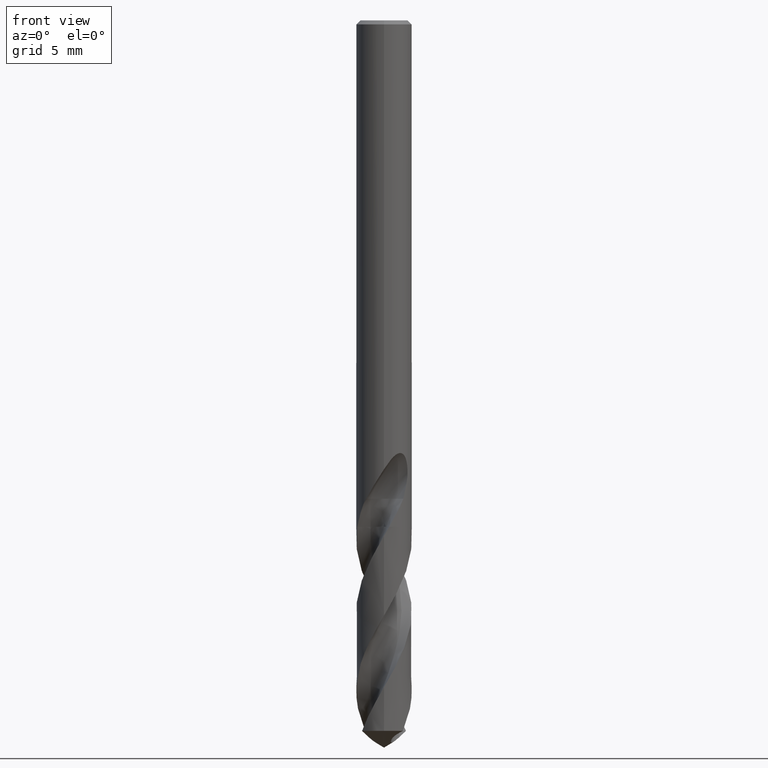
[diagram: clean part render]
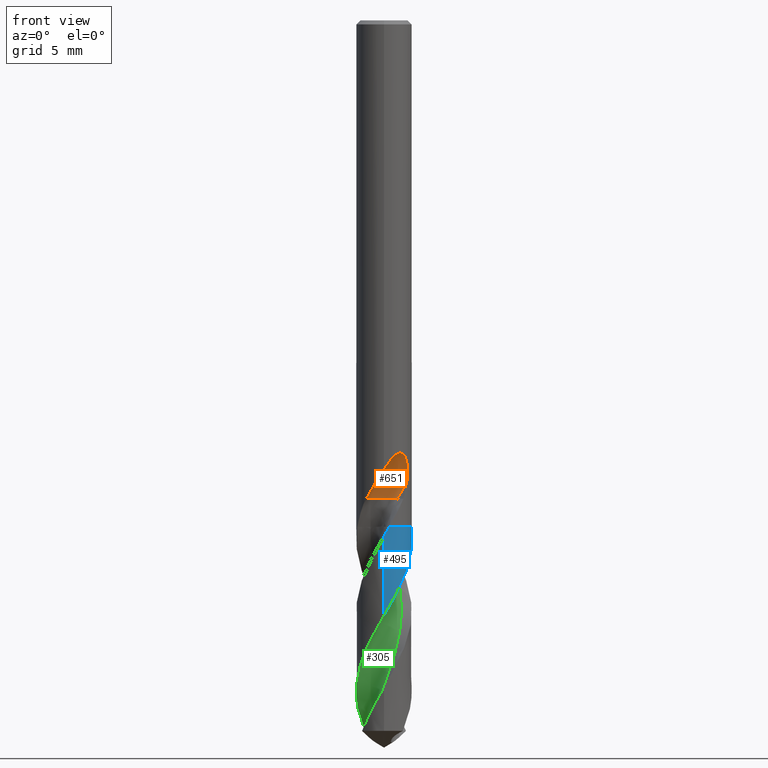
[diagram: same view with three faces highlighted in distinct colors, each labeled with its STEP entity id]
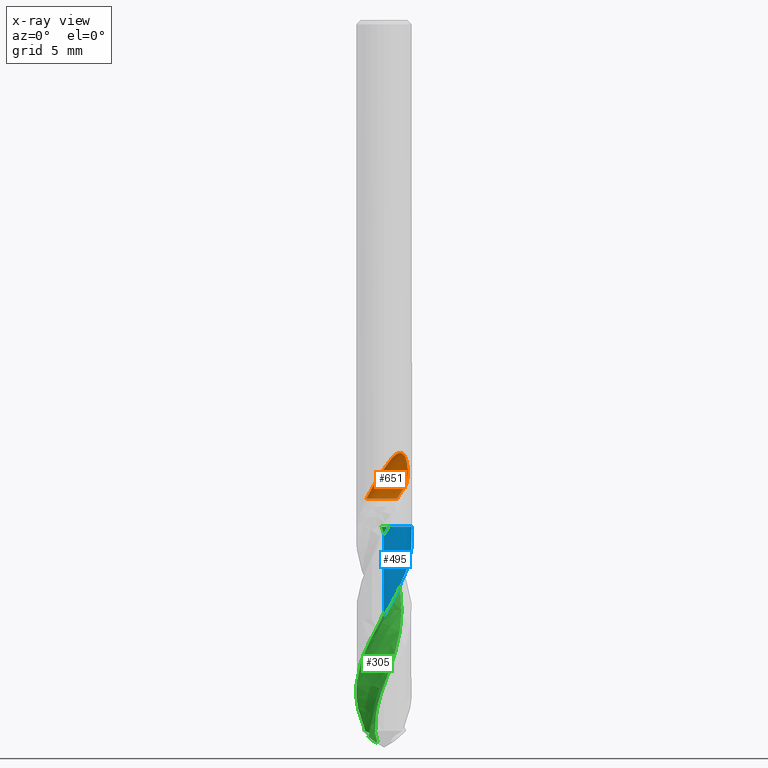
[diagram: x-ray of the same camera — body ghosted, the three highlighted faces saturated]
A machine part, front view with three faces highlighted in distinct colors.
The next image is the same camera in x-ray (body ghosted, the three faces saturated) — at least one of them is partly hidden behind the body in this view.
Their STEP definitions:

[orange] entity #651 — the highlighted face is a SurfaceOfRevolution surface.
#311=VERTEX_POINT('',#810);
#347=EDGE_CURVE('',#617,#671,#851,.T.);
#361=EDGE_CURVE('',#671,#583,#866,.T.);
#411=EDGE_CURVE('',#623,#583,#921,.T.);
#499=EDGE_CURVE('',#311,#623,#1015,.T.);
#555=EDGE_CURVE('',#311,#617,#1076,.T.);
#583=VERTEX_POINT('',#1104);
#617=VERTEX_POINT('',#1140);
#623=VERTEX_POINT('',#1146);
#651=ADVANCED_FACE('',(#1178),#1179,.F.);
#671=VERTEX_POINT('',#1200);
#810=CARTESIAN_POINT('',(-1.33815477037532,-1.61843807744435,-36.1802));
#851=CIRCLE('',#3242,1.4);
#866=CIRCLE('',#3371,9.12504579027448);
#921=B_SPLINE_CURVE_WITH_KNOTS('',3,(#3680,#3681,#3682,#3683,#3684,#3685,#3686,#3687,#3688,#3689,#3690,#3691,#3692,#3693,#3694,#3695,#3696,#3697,#3698,#3699,#3700,#3701,#3702,#3703,#3704,#3705,#3706,#3707),.UNSPECIFIED.,.F.,.F.,(4,2,2,2,2,2,2,2,2,2,2,2,2,4),(0.0,1.02888532896578,1.59067981980449,2.09952440587855,2.69067965646268,3.40079201297187,4.01625864061398,4.29516669491358,4.49901449328071,4.69191413392008,4.93661883013172,5.29463172899718,5.80358915694652,6.38235072285999),.UNSPECIFIED.);
#1015=B_SPLINE_CURVE_WITH_KNOTS('',3,(#4149,#4150,#4151,#4152,#4153,#4154,#4155,#4156,#4157,#4158,#4159,#4160,#4161,#4162,#4163,#4164,#4165,#4166,#4167,#4168,#4169,#4170,#4171,#4172,#4173,#4174,#4175,#4176),.UNSPECIFIED.,.F.,.F.,(4,2,2,2,2,2,2,2,2,2,2,2,2,4),(0.0,1.02888532896578,1.59067981980449,2.09952440587855,2.69067965646268,3.40079201297187,4.01625864061398,4.29516669491358,4.49901449328071,4.69191413392008,4.93661883013172,5.29463172899718,5.80358915694652,6.38235072285999),.UNSPECIFIED.);
#1076=CIRCLE('',#4726,1.4);
#1104=CARTESIAN_POINT('',(1.70864854291025,-1.22086860751298,-35.0302815210883));
#1140=CARTESIAN_POINT('',(0.220957533885471,-0.647536526996968,-36.1802));
#1146=CARTESIAN_POINT('',(6.23962901204027E-013,-2.1,-33.9479410024607));
#1178=FACE_OUTER_BOUND('',#5825,.T.);
#1179=SURFACE_OF_REVOLUTION('',#5826,#5827);
#1200=CARTESIAN_POINT('',(0.989949493590455,-1.04005050640954,-36.1802));
#3242=AXIS2_PLACEMENT_3D('',#6974,#6975,#6976);
#3371=AXIS2_PLACEMENT_3D('',#6988,#6989,#6990);
#3680=CARTESIAN_POINT('',(-1.33815477037532,-1.61843807744435,-36.1802));
#3681=CARTESIAN_POINT('',(-1.19963090189851,-1.73297219400802,-35.8881112223602));
#3682=CARTESIAN_POINT('',(-1.04035972081438,-1.834785085847,-35.6157904295779));
#3683=CARTESIAN_POINT('',(-0.762638208962339,-1.95957807725862,-35.1608597650517));
#3684=CARTESIAN_POINT('',(-0.662701086433434,-1.99547625780557,-35.0008000391549));
#3685=CARTESIAN_POINT('',(-0.469235431953876,-2.04912734544822,-34.6909657977839));
#3686=CARTESIAN_POINT('',(-0.376570734134232,-2.06808215024568,-34.5426354971455));
#3687=CARTESIAN_POINT('',(-0.175990679085837,-2.09543863683843,-34.2229442145823));
#3688=CARTESIAN_POINT('',(-0.0663998889054547,-2.10186119944241,-34.0490808548331));
#3689=CARTESIAN_POINT('',(0.176973125026402,-2.09674199259401,-33.677129812363));
#3690=CARTESIAN_POINT('',(0.321268696880061,-2.08090824141791,-33.465485616075));
#3691=CARTESIAN_POINT('',(0.599524068126656,-2.01696391842214,-33.116498906123));
#3692=CARTESIAN_POINT('',(0.7534716760137,-1.96824639555499,-32.9462069951458));
#3693=CARTESIAN_POINT('',(0.98646980318537,-1.8556373455113,-32.7867458653066));
#3694=CARTESIAN_POINT('',(1.06359366909528,-1.81312487038635,-32.7473366637846));
#3695=CARTESIAN_POINT('',(1.19873242122968,-1.72559062949754,-32.7170633184468));
#3696=CARTESIAN_POINT('',(1.25416041542417,-1.68572687573651,-32.7164980346548));
#3697=CARTESIAN_POINT('',(1.3573980505889,-1.60361585924015,-32.7429934880568));
#3698=CARTESIAN_POINT('',(1.40254904203296,-1.5639578749058,-32.767835336699));
#3699=CARTESIAN_POINT('',(1.49443080912874,-1.47705049532201,-32.8455626312415));
#3700=CARTESIAN_POINT('',(1.53693947345426,-1.43201290614732,-32.9029502600879));
#3701=CARTESIAN_POINT('',(1.62401096383942,-1.33367002680633,-33.0600954158963));
#3702=CARTESIAN_POINT('',(1.66562940042639,-1.28011528983812,-33.1766506863448));
#3703=CARTESIAN_POINT('',(1.74389133327145,-1.17257804110451,-33.5027593615221));
#3704=CARTESIAN_POINT('',(1.7721848346708,-1.12677233329937,-33.7350095812939));
#3705=CARTESIAN_POINT('',(1.79027549176488,-1.09783577125529,-34.290276149154));
#3706=CARTESIAN_POINT('',(1.7774570783939,-1.12456864274165,-34.6389185240585));
#3707=CARTESIAN_POINT('',(1.70864854291025,-1.22086860751298,-35.0302815210883));
#4149=CARTESIAN_POINT('',(-1.33815477037532,-1.61843807744435,-36.1802));
#4150=CARTESIAN_POINT('',(-1.19963090189851,-1.73297219400802,-35.8881112223602));
#4151=CARTESIAN_POINT('',(-1.04035972081438,-1.834785085847,-35.6157904295779));
#4152=CARTESIAN_POINT('',(-0.762638208962339,-1.95957807725862,-35.1608597650517));
#4153=CARTESIAN_POINT('',(-0.662701086433434,-1.99547625780557,-35.0008000391549));
#4154=CARTESIAN_POINT('',(-0.469235431953876,-2.04912734544822,-34.6909657977839));
#4155=CARTESIAN_POINT('',(-0.376570734134232,-2.06808215024568,-34.5426354971455));
#4156=CARTESIAN_POINT('',(-0.175990679085837,-2.09543863683843,-34.2229442145823));
#4157=CARTESIAN_POINT('',(-0.0663998889054547,-2.10186119944241,-34.0490808548331));
#4158=CARTESIAN_POINT('',(0.176973125026402,-2.09674199259401,-33.677129812363));
#4159=CARTESIAN_POINT('',(0.321268696880061,-2.08090824141791,-33.465485616075));
#4160=CARTESIAN_POINT('',(0.599524068126656,-2.01696391842214,-33.116498906123));
#4161=CARTESIAN_POINT('',(0.7534716760137,-1.96824639555499,-32.9462069951458));
#4162=CARTESIAN_POINT('',(0.98646980318537,-1.8556373455113,-32.7867458653066));
#4163=CARTESIAN_POINT('',(1.06359366909528,-1.81312487038635,-32.7473366637846));
#4164=CARTESIAN_POINT('',(1.19873242122968,-1.72559062949754,-32.7170633184468));
#4165=CARTESIAN_POINT('',(1.25416041542417,-1.68572687573651,-32.7164980346548));
#4166=CARTESIAN_POINT('',(1.3573980505889,-1.60361585924015,-32.7429934880568));
#4167=CARTESIAN_POINT('',(1.40254904203296,-1.5639578749058,-32.767835336699));
#4168=CARTESIAN_POINT('',(1.49443080912874,-1.47705049532201,-32.8455626312415));
#4169=CARTESIAN_POINT('',(1.53693947345426,-1.43201290614732,-32.9029502600879));
#4170=CARTESIAN_POINT('',(1.62401096383942,-1.33367002680633,-33.0600954158963));
#4171=CARTESIAN_POINT('',(1.66562940042639,-1.28011528983812,-33.1766506863448));
#4172=CARTESIAN_POINT('',(1.74389133327145,-1.17257804110451,-33.5027593615221));
#4173=CARTESIAN_POINT('',(1.7721848346708,-1.12677233329937,-33.7350095812939));
#4174=CARTESIAN_POINT('',(1.79027549176488,-1.09783577125529,-34.290276149154));
#4175=CARTESIAN_POINT('',(1.7774570783939,-1.12456864274165,-34.6389185240585));
#4176=CARTESIAN_POINT('',(1.70864854291025,-1.22086860751298,-35.0302815210883));
#4726=AXIS2_PLACEMENT_3D('',#7194,#7195,#7196);
#5825=EDGE_LOOP('',(#7262,#7263,#7264,#7265,#7266));
#5826=(B_SPLINE_CURVE(3,(#7268,#7269,#7270,#7271,#7272,#7273,#7274,#7275,#7276),.UNSPECIFIED.,.F.,.F.)B_SPLINE_CURVE_WITH_KNOTS((4,1,3,1,4),(-2.85587409918412,-2.55247868108804,-2.24908326299196,-1.94568784489587,-1.64229242679979),.UNSPECIFIED.)RATIONAL_B_SPLINE_CURVE((1.0920487797217,1.0306829265739,0.969317073426101,1.0306829265739,1.0920487797217,1.0306829265739,0.969317073426101,1.0306829265739,1.0920487797217))BOUNDED_CURVE()REPRESENTATION_ITEM('')GEOMETRIC_REPRESENTATION_ITEM()CURVE());
#5827=AXIS1_PLACEMENT('',#7283,#7284);
#6974=CARTESIAN_POINT('',(-1.18321600557454E-005,-2.02998816783994,-36.1802));
#6975=DIRECTION('',(-0.0,0.0,-1.0));
#6976=DIRECTION('',(-0.707098329593144,-0.707115232678936,0.0));
#6988=CARTESIAN_POINT('',(0.711873793143698,-10.15,-36.6251211207148));
#6989=DIRECTION('',(0.847998304005088,-5.3333503820404E-018,-0.52999894000318));
#6990=DIRECTION('',(0.0535598122533608,0.994880693138896,0.0856956996053773));
#7194=CARTESIAN_POINT('',(-1.18321600557454E-005,-2.02998816783994,-36.1802));
#7195=DIRECTION('',(-0.0,0.0,-1.0));
#7196=DIRECTION('',(-0.707098329593144,-0.707115232678936,0.0));
#7262=ORIENTED_EDGE('',*,*,#499,.F.);
#7263=ORIENTED_EDGE('',*,*,#555,.T.);
#7264=ORIENTED_EDGE('',*,*,#347,.T.);
#7265=ORIENTED_EDGE('',*,*,#361,.T.);
#7266=ORIENTED_EDGE('',*,*,#411,.F.);
#7268=CARTESIAN_POINT('',(0.989949493590455,-1.04005050640954,-36.1802));
#7269=CARTESIAN_POINT('',(0.795681827020351,-0.84577819589828,-36.1802));
#7270=CARTESIAN_POINT('',(0.290292936088508,-0.569937688920351,-36.1802));
#7271=CARTESIAN_POINT('',(-0.282175602542642,-0.63146563902982,-36.1802));
#7272=CARTESIAN_POINT('',(-0.535984059782297,-0.736646074185811,-36.1802));
#7273=CARTESIAN_POINT('',(-0.789792517021952,-0.841826509341802,-36.1802));
#7274=CARTESIAN_POINT('',(-1.23797535814772,-1.2032653800898,-36.1802));
#7275=CARTESIAN_POINT('',(-1.40010655193457,-1.75573202376018,-36.1802));
#7276=CARTESIAN_POINT('',(-1.40001174881076,-2.03047125997944,-36.1802));
#7283=CARTESIAN_POINT('',(0.711873793143697,-10.15,-36.6251211207148));
#7284=DIRECTION('',(-0.847998304005088,0.0,0.52999894000318));

[blue] entity #495 — the highlighted conical surface has half-angle 0 deg.
#313=VERTEX_POINT('',#812);
#317=VERTEX_POINT('',#816);
#329=EDGE_CURVE('',#641,#317,#830,.T.);
#401=EDGE_CURVE('',#719,#313,#911,.T.);
#439=VERTEX_POINT('',#950);
#491=VERTEX_POINT('',#1006);
#495=ADVANCED_FACE('',(#1010),#1011,.T.);
#599=EDGE_CURVE('',#313,#439,#1120,.T.);
#641=VERTEX_POINT('',#1166);
#653=EDGE_CURVE('',#317,#719,#1181,.T.);
#689=EDGE_CURVE('',#491,#439,#1219,.T.);
#719=VERTEX_POINT('',#1252);
#727=EDGE_CURVE('',#491,#641,#1260,.T.);
#812=CARTESIAN_POINT('',(0.390145780357921,-2.06333865763444,-38.305));
#816=CARTESIAN_POINT('',(2.02242974170197,0.565117642512876,-38.3));
#830=B_SPLINE_CURVE_WITH_KNOTS('',3,(#2741,#2742,#2743,#2744),.UNSPECIFIED.,.F.,.F.,(4,4),(0.0,0.0091078684861657),.UNSPECIFIED.);
#911=B_SPLINE_CURVE_WITH_KNOTS('',3,(#3646,#3647,#3648,#3649),.UNSPECIFIED.,.F.,.F.,(4,4),(0.0,0.00799907949211463),.UNSPECIFIED.);
#950=CARTESIAN_POINT('',(-1.36379404528717E-014,-2.09990444357236,-38.9860072637857));
#1006=CARTESIAN_POINT('',(1.30074145295058E-014,-2.0999434989582,-45.0154529889263));
#1010=FACE_OUTER_BOUND('',#4143,.T.);
#1011=CONICAL_SURFACE('',#4144,2.09995,6.47744214246915E-006);
#1120=B_SPLINE_CURVE_WITH_KNOTS('',3,(#5078,#5079,#5080,#5081,#5082,#5083,#5084,#5085,#5086,#5087,#5088,#5089,#5090,#5091,#5092,#5093,#5094,#5095,#5096,#5097,#5098,#5099,#5100,#5101,#5102,#5103,#5104,#5105,#5106,#5107,#5108,#5109,#5110,#5111,#5112,#5113,#5114,#5115,#5116,#5117,#5118,#5119,#5120,#5121,#5122,#5123,#5124,#5125,#5126,#5127,#5128,#5129,#5130,#5131),.UNSPECIFIED.,.F.,.F.,(4,2,2,2,2,2,2,2,2,2,2,2,2,2,2,2,2,2,2,2,2,2,2,2,2,2,4),(0.0,0.503909517574483,1.13278829859474,1.95331177845155,2.7691083189169,3.17418708438028,3.98540678216723,4.80004578718783,5.61705186428529,5.81836232337109,6.62775542031261,7.44499740375023,8.26058421103626,8.66412830215472,9.47658145994464,10.2886939642005,11.1063820422001,11.2067594291098,12.0003007831243,12.7277738410954,13.3615420971519,14.4769491370103,14.8951127221257,15.626291945844,16.1753774852233,17.0001347180208,17.8248516723183),.UNSPECIFIED.);
#1166=CARTESIAN_POINT('',(2.02320340970795,0.56234163577506,-38.305));
#1181=CIRCLE('',#5830,2.0999);
#1219=LINE('',#6485,#6486);
#1252=CARTESIAN_POINT('',(0.392983451432711,-2.06280004287862,-38.3));
#1260=B_SPLINE_CURVE_WITH_KNOTS('',3,(#6572,#6573,#6574,#6575,#6576,#6577,#6578,#6579,#6580,#6581,#6582,#6583,#6584,#6585,#6586,#6587,#6588,#6589,#6590,#6591,#6592,#6593,#6594,#6595,#6596,#6597,#6598,#6599,#6600,#6601,#6602,#6603,#6604,#6605,#6606,#6607,#6608,#6609,#6610,#6611,#6612,#6613,#6614,#6615,#6616,#6617,#6618,#6619,#6620,#6621,#6622,#6623,#6624,#6625,#6626,#6627,#6628,#6629,#6630,#6631,#6632,#6633,#6634,#6635,#6636,#6637,#6638,#6639,#6640,#6641,#6642,#6643,#6644,#6645),.UNSPECIFIED.,.F.,.F.,(4,2,2,2,2,2,2,2,2,2,2,2,2,2,2,2,2,2,2,2,2,2,2,2,2,2,2,2,2,2,2,2,2,2,2,2,4),(0.0,1.23625972292761,1.28090321037564,1.97511493637118,2.3840890977892,2.79224867802999,3.47174308860152,3.8120364301856,4.15063406902024,4.83041698696505,5.170846193326,5.50962474233837,6.18969503071297,6.53030297834813,6.86930156829632,7.54976232675562,7.89055696891206,8.22975320464369,8.91059984628346,9.25161203428264,9.59105219666649,10.272348982676,10.6136108251922,10.9533446528941,11.6351623398099,11.9766777413867,12.3166696129387,12.9990374819741,13.3054847538729,13.8777061850719,14.884091522244,14.9310911833174,15.6738396568611,16.2313276549158,16.3356349820193,17.1189991023162,17.9004014585408),.UNSPECIFIED.);
#2741=CARTESIAN_POINT('',(2.02364894547729,0.560736275034458,-38.3078911612519));
#2742=CARTESIAN_POINT('',(2.02324418297431,0.5621969642544,-38.3052606510093));
#2743=CARTESIAN_POINT('',(2.02283778197663,0.563657420873323,-38.3026302634322));
#2744=CARTESIAN_POINT('',(2.02242974170197,0.565117642512899,-38.3));
#3646=CARTESIAN_POINT('',(0.392983451432721,-2.06280004287862,-38.3));
#3647=CARTESIAN_POINT('',(0.391673276458587,-2.06304965916571,-38.3023088109479));
#3648=CARTESIAN_POINT('',(0.390362881889022,-2.06329802375483,-38.3046176308124));
#3649=CARTESIAN_POINT('',(0.389052269520858,-2.06354513641158,-38.3069264628355));
#4143=EDGE_LOOP('',(#7124,#7125,#7126,#7127,#7128,#7129));
#4144=AXIS2_PLACEMENT_3D('',#7130,#7131,#7132);
#5078=CARTESIAN_POINT('',(0.390569997594199,-2.06325839454656,-38.3042526002693));
#5079=CARTESIAN_POINT('',(0.308017328981765,-2.07888638085567,-38.449699119055));
#5080=CARTESIAN_POINT('',(0.224716797414785,-2.08952430822792,-38.5951383021161));
#5081=CARTESIAN_POINT('',(0.0367738684099087,-2.10218470287974,-38.9223348117959));
#5082=CARTESIAN_POINT('',(-0.0679943574266461,-2.10141253859432,-39.1038875286953));
#5083=CARTESIAN_POINT('',(-0.308420420629415,-2.08161981260738,-39.5224390327178));
#5084=CARTESIAN_POINT('',(-0.443125251478291,-2.05716336356693,-39.7583208125454));
#5085=CARTESIAN_POINT('',(-0.705158400106131,-1.98263238746144,-40.2307940643223));
#5086=CARTESIAN_POINT('',(-0.831902417006057,-1.93288220866722,-40.4658503427265));
#5087=CARTESIAN_POINT('',(-1.0130741240081,-1.84061942150497,-40.8183438752922));
#5088=CARTESIAN_POINT('',(-1.07165398331752,-1.80713978354698,-40.9351926608393));
#5089=CARTESIAN_POINT('',(-1.24236193478339,-1.6983594475139,-41.2864610908847));
#5090=CARTESIAN_POINT('',(-1.34899979536947,-1.61496761203563,-41.5203685107646));
#5091=CARTESIAN_POINT('',(-1.54524320417646,-1.42839463975181,-41.9898332983309));
#5092=CARTESIAN_POINT('',(-1.63425164651977,-1.32562957028781,-42.2243981313254));
#5093=CARTESIAN_POINT('',(-1.79139311922352,-1.10412984435196,-42.6956394447378));
#5094=CARTESIAN_POINT('',(-1.8591471768903,-0.985797808151183,-42.930975937371));
#5095=CARTESIAN_POINT('',(-1.92875098901316,-0.831118518378167,-43.2250018358748));
#5096=CARTESIAN_POINT('',(-1.94177287670343,-0.800223200289188,-43.2831057114801));
#5097=CARTESIAN_POINT('',(-2.00340353928966,-0.643630058372398,-43.5750011538261));
#5098=CARTESIAN_POINT('',(-2.04058122880582,-0.513741692568061,-43.8084848827808));
#5099=CARTESIAN_POINT('',(-2.08976059917131,-0.247325392888569,-44.2782629886076));
#5100=CARTESIAN_POINT('',(-2.10139018086837,-0.11142495336553,-44.5135340097885));
#5101=CARTESIAN_POINT('',(-2.09820825033845,0.160363000775788,-44.9851936857589));
#5102=CARTESIAN_POINT('',(-2.08345659791678,0.295700461871953,-45.2202185243422));
#5103=CARTESIAN_POINT('',(-2.04199424879412,0.494527167725195,-45.5722820178483));
#5104=CARTESIAN_POINT('',(-2.02512257635464,0.55961889771996,-45.6887212518613));
#5105=CARTESIAN_POINT('',(-1.9649898299328,0.752928517137824,-46.0399799950333));
#5106=CARTESIAN_POINT('',(-1.91241331019603,0.877947662392781,-46.2742468743428));
#5107=CARTESIAN_POINT('',(-1.78391237756426,1.11614103097192,-46.7434441908355));
#5108=CARTESIAN_POINT('',(-1.70833866832319,1.22868832413268,-46.9774472691566));
#5109=CARTESIAN_POINT('',(-1.53608485396776,1.43833375736206,-47.448269252438));
#5110=CARTESIAN_POINT('',(-1.43960923739679,1.53490051405826,-47.6838124251385));
#5111=CARTESIAN_POINT('',(-1.32150722229206,1.63209706794024,-47.9489523292886));
#5112=CARTESIAN_POINT('',(-1.30847043446765,1.64256749154625,-47.9779373287673));
#5113=CARTESIAN_POINT('',(-1.1912730174795,1.73441352718902,-48.2361479499733));
#5114=CARTESIAN_POINT('',(-1.0797589536874,1.80594882725479,-48.4651641484731));
#5115=CARTESIAN_POINT('',(-0.854553728601669,1.92205407898775,-48.9045503267968));
#5116=CARTESIAN_POINT('',(-0.742261005782644,1.96814586874391,-49.1140479251563));
#5117=CARTESIAN_POINT('',(-0.525909641333397,2.03579030658126,-49.507339454028));
#5118=CARTESIAN_POINT('',(-0.422928295383579,2.05965249761215,-49.6902925328945));
#5119=CARTESIAN_POINT('',(-0.134908088137453,2.10386084279632,-50.1956201899306));
#5120=CARTESIAN_POINT('',(0.0516646706071843,2.10754555445554,-50.5163525505894));
#5121=CARTESIAN_POINT('',(0.30543875794485,2.07881726228552,-50.9594372772372));
#5122=CARTESIAN_POINT('',(0.37422279021143,2.06754445777166,-51.0801652060103));
#5123=CARTESIAN_POINT('',(0.56144113566867,2.02720611613326,-51.4121744287994));
#5124=CARTESIAN_POINT('',(0.678040337001556,1.9912372771231,-51.6229029169465));
#5125=CARTESIAN_POINT('',(0.875520498819515,1.91096184146802,-51.9928350238206));
#5126=CARTESIAN_POINT('',(0.957902075011818,1.87102879249249,-52.1513464301706));
#5127=CARTESIAN_POINT('',(1.15690667055529,1.75795759471379,-52.5482463852867));
#5128=CARTESIAN_POINT('',(1.26941257733474,1.67852228734416,-52.7858535933192));
#5129=CARTESIAN_POINT('',(1.47725957618053,1.49885310389707,-53.2624188558046));
#5130=CARTESIAN_POINT('',(1.57214712188489,1.39901384181612,-53.4999757726785));
#5131=CARTESIAN_POINT('',(1.65662077604711,1.29058421049116,-53.7381927000421));
#5830=AXIS2_PLACEMENT_3D('',#7285,#7286,#7287);
#6485=CARTESIAN_POINT('',(2.57655683829627E-016,-2.09995,-46.0190963500211));
#6486=VECTOR('',#7311,1.0);
#6572=CARTESIAN_POINT('',(-1.42649737981016,1.54113763999026,-53.7381927000421));
#6573=CARTESIAN_POINT('',(-1.57695963547069,1.40186463132384,-53.3807301378004));
#6574=CARTESIAN_POINT('',(-1.70625555040632,1.24129005580703,-53.0293134092204));
#6575=CARTESIAN_POINT('',(-1.81403925200662,1.05796369603176,-52.6594367115552));
#6576=CARTESIAN_POINT('',(-1.81775758415094,1.05156197003925,-52.6465537494186));
#6577=CARTESIAN_POINT('',(-1.87879164116603,0.945189935453131,-52.4332394713616));
#6578=CARTESIAN_POINT('',(-1.92791238872987,0.840527311451122,-52.2338000763874));
#6579=CARTESIAN_POINT('',(-1.99198013429963,0.66828655964907,-51.9157455652368));
#6580=CARTESIAN_POINT('',(-2.01258782056809,0.603374998298269,-51.7980066051716));
#6581=CARTESIAN_POINT('',(-2.04737025013092,0.472039583868538,-51.5622762686134));
#6582=CARTESIAN_POINT('',(-2.06153181722622,0.405726798596233,-51.444209904945));
#6583=CARTESIAN_POINT('',(-2.09066250873509,0.227553600222249,-51.1305784864097));
#6584=CARTESIAN_POINT('',(-2.09988608488912,0.114830844412168,-50.9356141501241));
#6585=CARTESIAN_POINT('',(-2.10002678840179,-0.0548590825056493,-50.6418465304335));
#6586=CARTESIAN_POINT('',(-2.0977834526929,-0.111399099600811,-50.5439079645802));
#6587=CARTESIAN_POINT('',(-2.0887800573786,-0.223754302804554,-50.3481971439892));
#6588=CARTESIAN_POINT('',(-2.08204988465575,-0.279516762296138,-50.2503728293071));
#6589=CARTESIAN_POINT('',(-2.05509471999118,-0.446323204897777,-49.9568442280061));
#6590=CARTESIAN_POINT('',(-2.02814153083882,-0.55616234144262,-49.761871057212));
#6591=CARTESIAN_POINT('',(-1.97453338334247,-0.717152402691944,-49.4681023610114));
#6592=CARTESIAN_POINT('',(-1.95449948014606,-0.770067979609093,-49.3701643658867));
#6593=CARTESIAN_POINT('',(-1.91037407804928,-0.873789214607527,-49.1744441489832));
#6594=CARTESIAN_POINT('',(-1.88632768804101,-0.924552415493039,-49.0766078507017));
#6595=CARTESIAN_POINT('',(-1.80793616589045,-1.07422082498457,-48.7830796780434));
#6596=CARTESIAN_POINT('',(-1.74758831670783,-1.16986200662086,-48.5881162685079));
#6597=CARTESIAN_POINT('',(-1.64575179937315,-1.30558769415783,-48.2943594190237));
#6598=CARTESIAN_POINT('',(-1.60998647372268,-1.34943891313401,-48.1964196726624));
#6599=CARTESIAN_POINT('',(-1.5352677527402,-1.43386168437587,-48.0006855557121));
#6600=CARTESIAN_POINT('',(-1.49637147739585,-1.47440516464981,-47.9028367535178));
#6601=CARTESIAN_POINT('',(-1.37460150306921,-1.59154756824184,-47.6092976532267));
#6602=CARTESIAN_POINT('',(-1.28706411952831,-1.66315261858641,-47.4143303838959));
#6603=CARTESIAN_POINT('',(-1.14747920193266,-1.75963568325722,-47.1205693471303));
#6604=CARTESIAN_POINT('',(-1.09966634789741,-1.78990047717287,-47.0226295947384));
#6605=CARTESIAN_POINT('',(-1.00205445191026,-1.84631023083157,-46.8268918845728));
#6606=CARTESIAN_POINT('',(-0.952320200401932,-1.87244537355205,-46.7290378486443));
#6607=CARTESIAN_POINT('',(-0.799737722758124,-1.94497735502705,-46.4355074348213));
#6608=CARTESIAN_POINT('',(-0.694039659141798,-1.98516645669107,-46.2405493375742));
#6609=CARTESIAN_POINT('',(-0.531090397208035,-2.0324707402636,-45.9467992683771));
#6610=CARTESIAN_POINT('',(-0.476152581357892,-2.04603440922365,-45.8488592666883));
#6611=CARTESIAN_POINT('',(-0.365691401625201,-2.06862591830022,-45.6531140652609));
#6612=CARTESIAN_POINT('',(-0.310234439931019,-2.07766407178698,-45.5552520053569));
#6613=CARTESIAN_POINT('',(-0.142543848924141,-2.09813363643255,-45.2617241016337));
#6614=CARTESIAN_POINT('',(-0.0295639803973534,-2.10277684309451,-45.0667692676582));
#6615=CARTESIAN_POINT('',(0.139979429174032,-2.09603637315916,-44.7730259432923));
#6616=CARTESIAN_POINT('',(0.196389143239131,-2.09150139697624,-44.6750840143884));
#6617=CARTESIAN_POINT('',(0.308337346441052,-2.07794153230446,-44.4793242643663));
#6618=CARTESIAN_POINT('',(0.363814668173169,-2.06894687649886,-44.3814487632646));
#6619=CARTESIAN_POINT('',(0.529365127776661,-2.03524565665478,-44.0879104788328));
#6620=CARTESIAN_POINT('',(0.638001273951082,-2.00386314295443,-43.892957283783));
#6621=CARTESIAN_POINT('',(0.796682304129024,-1.94376647189027,-43.5992149602957));
#6622=CARTESIAN_POINT('',(0.848750680606152,-1.92159752429602,-43.5012747695548));
#6623=CARTESIAN_POINT('',(0.95063900341459,-1.8732769404577,-43.3055158646224));
#6624=CARTESIAN_POINT('',(1.00040865782058,-1.84717396744679,-43.2076387821707));
#6625=CARTESIAN_POINT('',(1.1467372927549,-1.76278481504455,-42.9141083507414));
#6626=CARTESIAN_POINT('',(1.23982916951966,-1.6986177372859,-42.7191514709198));
#6627=CARTESIAN_POINT('',(1.36675679244264,-1.59506914965465,-42.4355529934564));
#6628=CARTESIAN_POINT('',(1.4048834541671,-1.56158927664003,-42.3477257732288));
#6629=CARTESIAN_POINT('',(1.51053552159147,-1.46182119641447,-42.0955757400566));
#6630=CARTESIAN_POINT('',(1.57486522320521,-1.39228274341314,-41.9307783594397));
#6631=CARTESIAN_POINT('',(1.73894949831119,-1.18889682789988,-41.4776906637322));
#6632=CARTESIAN_POINT('',(1.82759557979525,-1.04744037054761,-41.1917716660326));
#6633=CARTESIAN_POINT('',(1.90186839551696,-0.89028489895096,-40.88918144816));
#6634=CARTESIAN_POINT('',(1.90514046053453,-0.883261102672644,-40.8756862192091));
#6635=CARTESIAN_POINT('',(1.95957074018127,-0.764708205626058,-40.6486107350995));
#6636=CARTESIAN_POINT('',(2.00098897614421,-0.648732277655782,-40.4361828595708));
#6637=CARTESIAN_POINT('',(2.05536191675618,-0.440071439084963,-40.0629066325811));
#6638=CARTESIAN_POINT('',(2.0727055673299,-0.349300466914093,-39.903281590152));
#6639=CARTESIAN_POINT('',(2.08613851731232,-0.240711331524891,-39.7130980923928));
#6640=CARTESIAN_POINT('',(2.08804369774982,-0.223583452944534,-39.6831201714541));
#6641=CARTESIAN_POINT('',(2.10249099718927,-0.0772865685181711,-39.4277155897356));
#6642=CARTESIAN_POINT('',(2.10325881656201,0.0528018798612655,-39.2040537662504));
#6643=CARTESIAN_POINT('',(2.08073285853896,0.311351533702633,-38.7542039027651));
#6644=CARTESIAN_POINT('',(2.05766511398071,0.438374291294746,-38.5282681163619));
#6645=CARTESIAN_POINT('',(2.02318675090137,0.562401559440356,-38.3048920733307));
#7124=ORIENTED_EDGE('',*,*,#689,.F.);
#7125=ORIENTED_EDGE('',*,*,#727,.T.);
#7126=ORIENTED_EDGE('',*,*,#329,.T.);
#7127=ORIENTED_EDGE('',*,*,#653,.T.);
#7128=ORIENTED_EDGE('',*,*,#401,.T.);
#7129=ORIENTED_EDGE('',*,*,#599,.T.);
#7130=CARTESIAN_POINT('',(0.0,0.0,-46.0190963500211));
#7131=DIRECTION('',(0.0,-0.0,-1.0));
#7132=DIRECTION('',(0.0,1.0,0.0));
#7285=CARTESIAN_POINT('',(0.0,0.0,-38.3));
#7286=DIRECTION('',(0.0,0.0,-1.0));
#7287=DIRECTION('',(0.0,1.0,0.0));
#7311=DIRECTION('',(-7.93231680412909E-022,6.47744214242386E-006,0.999999999979021));

[green] entity #305 — the highlighted face is a freeform B-spline surface patch.
#305=ADVANCED_FACE('',(#802),#803,.F.);
#337=EDGE_CURVE('',#641,#551,#839,.T.);
#351=EDGE_CURVE('',#373,#725,#855,.T.);
#373=VERTEX_POINT('',#880);
#399=EDGE_CURVE('',#551,#373,#909,.T.);
#491=VERTEX_POINT('',#1006);
#551=VERTEX_POINT('',#1072);
#565=EDGE_CURVE('',#725,#491,#1086,.T.);
#641=VERTEX_POINT('',#1166);
#725=VERTEX_POINT('',#1258);
#727=EDGE_CURVE('',#491,#641,#1260,.T.);
#802=FACE_OUTER_BOUND('',#2282,.T.);
#803=B_SPLINE_SURFACE_WITH_KNOTS('',3,3,((#2283,#2284,#2285,#2286,#2287,#2288,#2289,#2290,#2291,#2292,#2293,#2294,#2295,#2296,#2297,#2298,#2299,#2300,#2301,#2302,#2303,#2304,#2305,#2306,#2307,#2308,#2309,#2310,#2311,#2312,#2313,#2314,#2315,#2316,#2317,#2318,#2319,#2320,#2321),(#2322,#2323,#2324,#2325,#2326,#2327,#2328,#2329,#2330,#2331,#2332,#2333,#2334,#2335,#2336,#2337,#2338,#2339,#2340,#2341,#2342,#2343,#2344,#2345,#2346,#2347,#2348,#2349,#2350,#2351,#2352,#2353,#2354,#2355,#2356,#2357,#2358,#2359,#2360),(#2361,#2362,#2363,#2364,#2365,#2366,#2367,#2368,#2369,#2370,#2371,#2372,#2373,#2374,#2375,#2376,#2377,#2378,#2379,#2380,#2381,#2382,#2383,#2384,#2385,#2386,#2387,#2388,#2389,#2390,#2391,#2392,#2393,#2394,#2395,#2396,#2397,#2398,#2399),(#2400,#2401,#2402,#2403,#2404,#2405,#2406,#2407,#2408,#2409,#2410,#2411,#2412,#2413,#2414,#2415,#2416,#2417,#2418,#2419,#2420,#2421,#2422,#2423,#2424,#2425,#2426,#2427,#2428,#2429,#2430,#2431,#2432,#2433,#2434,#2435,#2436,#2437,#2438),(#2439,#2440,#2441,#2442,#2443,#2444,#2445,#2446,#2447,#2448,#2449,#2450,#2451,#2452,#2453,#2454,#2455,#2456,#2457,#2458,#2459,#2460,#2461,#2462,#2463,#2464,#2465,#2466,#2467,#2468,#2469,#2470,#2471,#2472,#2473,#2474,#2475,#2476,#2477),(#2478,#2479,#2480,#2481,#2482,#2483,#2484,#2485,#2486,#2487,#2488,#2489,#2490,#2491,#2492,#2493,#2494,#2495,#2496,#2497,#2498,#2499,#2500,#2501,#2502,#2503,#2504,#2505,#2506,#2507,#2508,#2509,#2510,#2511,#2512,#2513,#2514,#2515,#2516),(#2517,#2518,#2519,#2520,#2521,#2522,#2523,#2524,#2525,#2526,#2527,#2528,#2529,#2530,#2531,#2532,#2533,#2534,#2535,#2536,#2537,#2538,#2539,#2540,#2541,#2542,#2543,#2544,#2545,#2546,#2547,#2548,#2549,#2550,#2551,#2552,#2553,#2554,#2555),(#2556,#2557,#2558,#2559,#2560,#2561,#2562,#2563,#2564,#2565,#2566,#2567,#2568,#2569,#2570,#2571,#2572,#2573,#2574,#2575,#2576,#2577,#2578,#2579,#2580,#2581,#2582,#2583,#2584,#2585,#2586,#2587,#2588,#2589,#2590,#2591,#2592,#2593,#2594),(#2595,#2596,#2597,#2598,#2599,#2600,#2601,#2602,#2603,#2604,#2605,#2606,#2607,#2608,#2609,#2610,#2611,#2612,#2613,#2614,#2615,#2616,#2617,#2618,#2619,#2620,#2621,#2622,#2623,#2624,#2625,#2626,#2627,#2628,#2629,#2630,#2631,#2632,#2633),(#2634,#2635,#2636,#2637,#2638,#2639,#2640,#2641,#2642,#2643,#2644,#2645,#2646,#2647,#2648,#2649,#2650,#2651,#2652,#2653,#2654,#2655,#2656,#2657,#2658,#2659,#2660,#2661,#2662,#2663,#2664,#2665,#2666,#2667,#2668,#2669,#2670,#2671,#2672),(#2673,#2674,#2675,#2676,#2677,#2678,#2679,#2680,#2681,#2682,#2683,#2684,#2685,#2686,#2687,#2688,#2689,#2690,#2691,#2692,#2693,#2694,#2695,#2696,#2697,#2698,#2699,#2700,#2701,#2702,#2703,#2704,#2705,#2706,#2707,#2708,#2709,#2710,#2711)),.UNSPECIFIED.,.F.,.F.,.F.,(4,1,1,1,1,1,1,1,4),(4,1,2,2,2,2,2,2,2,2,2,2,2,2,2,2,2,2,2,4),(-3.06643213292735E-017,0.392702069770371,0.785404139540742,1.17810620931111,1.57080827908148,1.96351034885185,2.35621241862223,2.7489144883926,3.14161655816297),(0.0,0.377783773898047,0.755567547796093,1.51113509559219,2.26670264338828,3.02227019118437,4.53340528677656,6.04454038236875,7.55567547796093,9.06681057355312,10.5779456691453,12.0890807647375,13.6002158603297,15.1113509559219,16.6224860515141,18.1336211471062,19.6447562426984,21.1558913382906,22.6670264338828,24.178161529475),.UNSPECIFIED.);
#839=B_SPLINE_CURVE_WITH_KNOTS('',3,(#2781,#2782,#2783,#2784,#2785,#2786,#2787,#2788,#2789,#2790,#2791,#2792,#2793,#2794,#2795,#2796,#2797,#2798,#2799,#2800),.UNSPECIFIED.,.F.,.F.,(4,2,2,2,2,2,2,2,2,4),(-4.41013167586698,-4.11834428530878,-3.82649306109936,-3.2792943898088,-2.73216853712332,-2.18537760738312,-1.63898850640887,-1.09283122814982,-0.546593721055223,-0.0),.UNSPECIFIED.);
#855=B_SPLINE_CURVE_WITH_KNOTS('',3,(#3247,#3248,#3249,#3250,#3251,#3252,#3253,#3254,#3255,#3256,#3257,#3258,#3259,#3260,#3261,#3262,#3263,#3264,#3265,#3266,#3267,#3268),.UNSPECIFIED.,.F.,.F.,(4,2,2,2,2,2,2,2,2,2,4),(0.0,0.72128425080229,1.41332437305516,1.96690449564687,2.45915162259159,3.08818770099374,3.83115656962382,4.71423728901641,5.72105162538196,6.49399210159101,7.26291400823827),.UNSPECIFIED.);
#880=CARTESIAN_POINT('',(-1.16681710543968,-0.626358709644195,-54.2042764481402));
#909=B_SPLINE_CURVE_WITH_KNOTS('',3,(#3605,#3606,#3607,#3608,#3609,#3610,#3611,#3612,#3613,#3614,#3615,#3616,#3617,#3618,#3619,#3620,#3621,#3622,#3623,#3624,#3625,#3626,#3627,#3628,#3629,#3630,#3631,#3632,#3633,#3634,#3635,#3636,#3637,#3638,#3639,#3640,#3641,#3642,#3643),.UNSPECIFIED.,.F.,.F.,(4,1,2,2,2,2,2,2,2,2,2,2,2,2,2,2,2,2,2,4),(0.0,0.377783773898047,0.755567547796093,1.51113509559219,2.26670264338828,3.02227019118437,4.53340528677656,6.04454038236875,7.55567547796093,9.06681057355312,10.5779456691453,12.0890807647375,13.6002158603297,15.1113509559219,16.6224860515141,18.1336211471062,19.6447562426984,21.1558913382906,22.6670264338828,24.178161529475),.UNSPECIFIED.);
#1006=CARTESIAN_POINT('',(1.30074145295058E-014,-2.0999434989582,-45.0154529889263));
#1072=CARTESIAN_POINT('',(-0.189008411700627,1.30571045022975,-38.305));
#1086=B_SPLINE_CURVE_WITH_KNOTS('',3,(#4738,#4739,#4740,#4741,#4742,#4743,#4744,#4745,#4746,#4747,#4748,#4749,#4750,#4751,#4752,#4753,#4754,#4755,#4756,#4757,#4758,#4759,#4760,#4761,#4762,#4763,#4764,#4765,#4766,#4767,#4768,#4769,#4770,#4771,#4772,#4773,#4774,#4775,#4776,#4777,#4778,#4779,#4780,#4781,#4782,#4783,#4784,#4785,#4786,#4787,#4788,#4789,#4790,#4791,#4792,#4793,#4794,#4795,#4796,#4797,#4798,#4799,#4800,#4801,#4802,#4803,#4804,#4805,#4806,#4807,#4808,#4809,#4810,#4811),.UNSPECIFIED.,.F.,.F.,(4,2,2,2,2,2,2,2,2,2,2,2,2,2,2,2,2,2,2,2,2,2,2,2,2,2,2,2,2,2,2,2,2,2,2,2,4),(0.0,1.23625972292761,1.28090321037564,1.97511493637118,2.3840890977892,2.79224867802999,3.47174308860152,3.8120364301856,4.15063406902024,4.83041698696505,5.170846193326,5.50962474233837,6.18969503071297,6.53030297834813,6.86930156829632,7.54976232675562,7.89055696891206,8.22975320464369,8.91059984628346,9.25161203428264,9.59105219666649,10.272348982676,10.6136108251922,10.9533446528941,11.6351623398099,11.9766777413867,12.3166696129387,12.9990374819741,13.3054847538729,13.8777061850719,14.884091522244,14.9310911833174,15.6738396568611,16.2313276549158,16.3356349820193,17.1189991023162,17.9004014585408),.UNSPECIFIED.);
#1166=CARTESIAN_POINT('',(2.02320340970795,0.56234163577506,-38.305));
#1258=CARTESIAN_POINT('',(-1.42649737981016,1.54113763999026,-53.7381927000421));
#1260=B_SPLINE_CURVE_WITH_KNOTS('',3,(#6572,#6573,#6574,#6575,#6576,#6577,#6578,#6579,#6580,#6581,#6582,#6583,#6584,#6585,#6586,#6587,#6588,#6589,#6590,#6591,#6592,#6593,#6594,#6595,#6596,#6597,#6598,#6599,#6600,#6601,#6602,#6603,#6604,#6605,#6606,#6607,#6608,#6609,#6610,#6611,#6612,#6613,#6614,#6615,#6616,#6617,#6618,#6619,#6620,#6621,#6622,#6623,#6624,#6625,#6626,#6627,#6628,#6629,#6630,#6631,#6632,#6633,#6634,#6635,#6636,#6637,#6638,#6639,#6640,#6641,#6642,#6643,#6644,#6645),.UNSPECIFIED.,.F.,.F.,(4,2,2,2,2,2,2,2,2,2,2,2,2,2,2,2,2,2,2,2,2,2,2,2,2,2,2,2,2,2,2,2,2,2,2,2,4),(0.0,1.23625972292761,1.28090321037564,1.97511493637118,2.3840890977892,2.79224867802999,3.47174308860152,3.8120364301856,4.15063406902024,4.83041698696505,5.170846193326,5.50962474233837,6.18969503071297,6.53030297834813,6.86930156829632,7.54976232675562,7.89055696891206,8.22975320464369,8.91059984628346,9.25161203428264,9.59105219666649,10.272348982676,10.6136108251922,10.9533446528941,11.6351623398099,11.9766777413867,12.3166696129387,12.9990374819741,13.3054847538729,13.8777061850719,14.884091522244,14.9310911833174,15.6738396568611,16.2313276549158,16.3356349820193,17.1189991023162,17.9004014585408),.UNSPECIFIED.);
#2282=EDGE_LOOP('',(#6906,#6907,#6908,#6909,#6910));
#2283=CARTESIAN_POINT('',(0.989949493590457,3.01994949359045,-36.1802));
#2284=CARTESIAN_POINT('',(1.0688758350359,3.01694523480776,-36.2781648728217));
#2285=CARTESIAN_POINT('',(1.22838499605891,2.99529351123711,-36.4750013554156));
#2286=CARTESIAN_POINT('',(1.38806801141491,2.934185332189,-36.6724568761365));
#2287=CARTESIAN_POINT('',(1.62174904329078,2.80701861833254,-36.966463749434));
#2288=CARTESIAN_POINT('',(1.76966327796019,2.71061782432644,-37.1618350121438));
#2289=CARTESIAN_POINT('',(2.04876049569606,2.49823952979735,-37.5529123345001));
#2290=CARTESIAN_POINT('',(2.18025751011716,2.38362006370322,-37.7487321672895));
#2291=CARTESIAN_POINT('',(2.42574998980041,2.14025174602709,-38.1422546239811));
#2292=CARTESIAN_POINT('',(2.53824674495528,2.00755476854275,-38.3387751362583));
#2293=CARTESIAN_POINT('',(2.83761443773202,1.57899887794761,-38.9263077218067));
#2294=CARTESIAN_POINT('',(2.99290221864939,1.26336389790182,-39.3181677854228));
#2295=CARTESIAN_POINT('',(3.19219957219411,0.596211397649259,-40.1029800734792));
#2296=CARTESIAN_POINT('',(3.23965023174292,0.247966950388596,-40.4952811945853));
#2297=CARTESIAN_POINT('',(3.21631626382117,-0.44790582149261,-41.2795427966477));
#2298=CARTESIAN_POINT('',(3.15075718844032,-0.793278255841488,-41.6717127005765));
#2299=CARTESIAN_POINT('',(2.90776658634747,-1.44583754428953,-42.4561358641061));
#2300=CARTESIAN_POINT('',(2.73592380634729,-1.75250251836327,-42.8483381112328));
#2301=CARTESIAN_POINT('',(2.29832860792267,-2.29412986721927,-43.6327239433382));
#2302=CARTESIAN_POINT('',(2.0380309165562,-2.53038248947402,-44.0249169170013));
#2303=CARTESIAN_POINT('',(1.45115828631184,-2.90510266830961,-44.8093111484721));
#2304=CARTESIAN_POINT('',(1.12932633129032,-3.04650925696587,-45.2015087042909));
#2305=CARTESIAN_POINT('',(0.453830201994696,-3.21551044094204,-45.9858956986333));
#2306=CARTESIAN_POINT('',(0.103749740714119,-3.24742342458163,-46.3780913518517));
#2307=CARTESIAN_POINT('',(-0.590452841522229,-3.19323231968715,-47.1624875485096));
#2308=CARTESIAN_POINT('',(-0.93254707052502,-3.11235709749897,-47.5546819376098));
#2309=CARTESIAN_POINT('',(-1.57363693064261,-2.84062694288188,-48.3390722069241));
#2310=CARTESIAN_POINT('',(-1.87237251767553,-2.65534385757207,-48.731270515787));
#2311=CARTESIAN_POINT('',(-2.39402389782029,-2.19410958045759,-49.5156592805247));
#2312=CARTESIAN_POINT('',(-2.61847014858793,-1.9235591362831,-49.9078510011194));
#2313=CARTESIAN_POINT('',(-2.96671776928263,-1.32057733959864,-50.6922453859183));
#2314=CARTESIAN_POINT('',(-3.09368929740705,-0.992777956200751,-51.0844545788978));
#2315=CARTESIAN_POINT('',(-3.23249277706261,-0.310481033234163,-51.8688493254887));
#2316=CARTESIAN_POINT('',(-3.24877168998819,0.04062264778827,-52.2609865853464));
#2317=CARTESIAN_POINT('',(-3.16406293963796,0.731802399706809,-53.0453751677296));
#2318=CARTESIAN_POINT('',(-3.0681007125806,1.07024574813472,-53.4378005396866));
#2319=CARTESIAN_POINT('',(-2.76648355650612,1.69816988505033,-54.2221773767236));
#2320=CARTESIAN_POINT('',(-2.56866786581134,1.98755483023997,-54.6137313860527));
#2321=CARTESIAN_POINT('',(-2.3300918373385,2.23920439267621,-55.0057709663642));
#2322=CARTESIAN_POINT('',(1.11952963473658,2.89035949161296,-36.1802));
#2323=CARTESIAN_POINT('',(1.19865110537932,2.88755034683775,-36.2781704451024));
#2324=CARTESIAN_POINT('',(1.35647999255895,2.8641688413914,-36.4751142057292));
#2325=CARTESIAN_POINT('',(1.51004238376363,2.79729350035698,-36.6727411403769));
#2326=CARTESIAN_POINT('',(1.73058708645289,2.6591364840982,-36.9667146854041));
#2327=CARTESIAN_POINT('',(1.86947831324708,2.55656876759864,-37.1619917279043));
#2328=CARTESIAN_POINT('',(2.13038744294053,2.33382806025886,-37.5529185708653));
#2329=CARTESIAN_POINT('',(2.25294601332059,2.2151306144555,-37.7486979558027));
#2330=CARTESIAN_POINT('',(2.48088574744182,1.96523097479249,-38.1424034266297));
#2331=CARTESIAN_POINT('',(2.58403228202983,1.82981894942975,-38.3389831163441));
#2332=CARTESIAN_POINT('',(2.8537237239247,1.39533611261552,-38.9264106308746));
#2333=CARTESIAN_POINT('',(2.98933802775998,1.07906519069538,-39.3182236905807));
#2334=CARTESIAN_POINT('',(3.14925450733559,0.41695104969127,-40.1030941845198));
#2335=CARTESIAN_POINT('',(3.17786564319282,0.074289486922436,-40.4954100321051));
#2336=CARTESIAN_POINT('',(3.1186698414808,-0.604258692519173,-41.2796536435777));
#2337=CARTESIAN_POINT('',(3.03702710898043,-0.938352192846241,-41.6718199222781));
#2338=CARTESIAN_POINT('',(2.76553801886752,-1.56310584473629,-42.4562474429037));
#2339=CARTESIAN_POINT('',(2.58201959265561,-1.85396435912514,-42.8484506011854));
#2340=CARTESIAN_POINT('',(2.12622734017524,-2.36017534625894,-43.6328356251199));
#2341=CARTESIAN_POINT('',(1.8598777189261,-2.57773553213537,-44.0250282135351));
#2342=CARTESIAN_POINT('',(1.26699332110694,-2.91310145979519,-44.8094227963846));
#2343=CARTESIAN_POINT('',(0.945355357370187,-3.03486054556882,-45.2016206084045));
#2344=CARTESIAN_POINT('',(0.276652863050472,-3.16462777872578,-45.98600694684));
#2345=CARTESIAN_POINT('',(-0.0670054062327995,-3.17797073837205,-46.3782025761151));
#2346=CARTESIAN_POINT('',(-0.74231038043726,-3.08873291044222,-47.16259942868));
#2347=CARTESIAN_POINT('',(-1.07241954697574,-2.99228811413435,-47.5547936464083));
#2348=CARTESIAN_POINT('',(-1.68446823222968,-2.6933274684109,-48.3391836580448));
#2349=CARTESIAN_POINT('',(-1.96689676873869,-2.49708394798412,-48.7313822335902));
#2350=CARTESIAN_POINT('',(-2.45235727235958,-2.01924365374159,-49.5157708343511));
#2351=CARTESIAN_POINT('',(-2.65785822918718,-1.74347705482715,-49.907962323127));
#2352=CARTESIAN_POINT('',(-2.96651802556714,-1.13623857742929,-50.6923562159957));
#2353=CARTESIAN_POINT('',(-3.07387334577383,-0.809506900916819,-51.0845660972644));
#2354=CARTESIAN_POINT('',(-3.17378658740479,-0.135740149919992,-51.8689647792967));
#2355=CARTESIAN_POINT('',(-3.17179662376283,0.208119129289933,-52.2610985742947));
#2356=CARTESIAN_POINT('',(-3.05294684070644,0.878884994996884,-53.0454738979881));
#2357=CARTESIAN_POINT('',(-2.94193977683836,1.20466772125742,-53.437913658134));
#2358=CARTESIAN_POINT('',(-2.61426453399403,1.80216532297949,-54.2223158881388));
#2359=CARTESIAN_POINT('',(-2.40638453109246,2.07487286431293,-54.6138256727836));
#2360=CARTESIAN_POINT('',(-2.16046956888506,2.30857914425172,-55.0058781135557));
#2361=CARTESIAN_POINT('',(1.32710198260631,2.5797046396058,-36.1802));
#2362=CARTESIAN_POINT('',(1.40669121965665,2.57720804675472,-36.2781796094613));
#2363=CARTESIAN_POINT('',(1.56047238777092,2.55103590197691,-36.4752998084156));
#2364=CARTESIAN_POINT('',(1.6995028085969,2.47506247913487,-36.6732086639284));
#2365=CARTESIAN_POINT('',(1.88940990216381,2.32015336590528,-36.9671273945315));
#2366=CARTESIAN_POINT('',(2.00780649789105,2.20884260544158,-37.162249475981));
#2367=CARTESIAN_POINT('',(2.22822633629662,1.9726142347265,-37.5529288267793));
#2368=CARTESIAN_POINT('',(2.331290114469,1.84931705733976,-37.7486416872619));
#2369=CARTESIAN_POINT('',(2.52153448196197,1.59333758721815,-38.142648160883));
#2370=CARTESIAN_POINT('',(2.60490483935291,1.45621481076889,-38.3393251735365));
#2371=CARTESIAN_POINT('',(2.81289933129177,1.02168183185807,-38.9265798899921));
#2372=CARTESIAN_POINT('',(2.90892208249152,0.711962749994896,-39.3183156311492));
#2373=CARTESIAN_POINT('',(2.99209696485799,0.0755835711750724,-40.1032818660751));
#2374=CARTESIAN_POINT('',(2.98525709780705,-0.24842277278057,-40.4956219447407));
#2375=CARTESIAN_POINT('',(2.86124211411098,-0.878068070739641,-41.2798359350012));
#2376=CARTESIAN_POINT('',(2.75192406803779,-1.18321254730491,-41.6719962537781));
#2377=CARTESIAN_POINT('',(2.434507325935,-1.74103380514282,-42.4564309680574));
#2378=CARTESIAN_POINT('',(2.23392820217099,-1.99564305338697,-42.8486355960811));
#2379=CARTESIAN_POINT('',(1.75583331044264,-2.42379991963706,-43.6330193208356));
#2380=CARTESIAN_POINT('',(1.48481571026006,-2.60157645394674,-44.0252112423421));
#2381=CARTESIAN_POINT('',(0.895560103758211,-2.85585979260487,-44.8096064396912));
#2382=CARTESIAN_POINT('',(0.582123152645108,-2.93840928586451,-45.2018046331338));
#2383=CARTESIAN_POINT('',(-0.0573929726820282,-2.99242672353221,-45.9861899361087));
#2384=CARTESIAN_POINT('',(-0.380824925050672,-2.97119133057515,-46.3783855143069));
#2385=CARTESIAN_POINT('',(-1.0044057981316,-2.81938973112094,-47.1627834257395));
#2386=CARTESIAN_POINT('',(-1.3043584201266,-2.69657837748643,-47.5549773673639));
#2387=CARTESIAN_POINT('',(-1.84750837915814,-2.35471685563734,-48.3393669635956));
#2388=CARTESIAN_POINT('',(-2.09297110370492,-2.14304182381302,-48.7315659690263));
#2389=CARTESIAN_POINT('',(-2.49946147211711,-1.64638831129922,-49.5159543091504));
#2390=CARTESIAN_POINT('',(-2.66500554270506,-1.36772547720827,-49.9081453770704));
#2391=CARTESIAN_POINT('',(-2.89281361654152,-0.767718103815525,-50.6925385309777));
#2392=CARTESIAN_POINT('',(-2.9613693859922,-0.450922063036689,-51.0847495138472));
#2393=CARTESIAN_POINT('',(-2.98691065477036,0.190322664184631,-51.8691546591523));
#2394=CARTESIAN_POINT('',(-2.95127149570204,0.512431311288654,-52.2612827743205));
#2395=CARTESIAN_POINT('',(-2.772271880998,1.12880130253544,-53.0456362635027));
#2396=CARTESIAN_POINT('',(-2.63621617812395,1.4232853336781,-53.4380996881204));
#2397=CARTESIAN_POINT('',(-2.26853526141814,1.94958029369545,-54.2225437085828));
#2398=CARTESIAN_POINT('',(-2.04716291318343,2.18493782552923,-54.613980746506));
#2399=CARTESIAN_POINT('',(-1.79370857545793,2.37984666365113,-55.0060543363255));
#2400=CARTESIAN_POINT('',(1.43645064624031,2.03000025877675,-36.1802000000001));
#2401=CARTESIAN_POINT('',(1.51686759661197,2.02766831670815,-36.2781853304544));
#2402=CARTESIAN_POINT('',(1.66343689847793,1.99995217936248,-36.4754156731114));
#2403=CARTESIAN_POINT('',(1.77710455942727,1.91971120815884,-36.6735005207299));
#2404=CARTESIAN_POINT('',(1.91493328275088,1.75917250032017,-36.9673850333388));
#2405=CARTESIAN_POINT('',(1.99990655729435,1.64750967706784,-37.1624103776287));
#2406=CARTESIAN_POINT('',(2.15646823684779,1.41583146478011,-37.5529352297213));
#2407=CARTESIAN_POINT('',(2.22987305729084,1.29735044087636,-37.7486065612743));
#2408=CARTESIAN_POINT('',(2.36438409145541,1.05458379618901,-38.1428009387712));
#2409=CARTESIAN_POINT('',(2.4193639786289,0.92644246335518,-38.3395387081861));
#2410=CARTESIAN_POINT('',(2.54182178997333,0.527257567432499,-38.9266855489703));
#2411=CARTESIAN_POINT('',(2.58673443786299,0.249346594296638,-39.3183730269385));
#2412=CARTESIAN_POINT('',(2.57832388974871,-0.30731191390955,-40.1033990276295));
#2413=CARTESIAN_POINT('',(2.53306040474662,-0.585112617507431,-40.4957542229671));
#2414=CARTESIAN_POINT('',(2.34728328085839,-1.10977208996849,-41.2799497432159));
#2415=CARTESIAN_POINT('',(2.21622741802778,-1.35890804803726,-41.6721063363855));
#2416=CARTESIAN_POINT('',(1.87358082345834,-1.79760056378711,-42.4565455301279));
#2417=CARTESIAN_POINT('',(1.67016574046826,-1.99217701542076,-42.848751088385));
#2418=CARTESIAN_POINT('',(1.20596817762165,-2.2993531986253,-43.6331339879096));
#2419=CARTESIAN_POINT('',(0.951319020203271,-2.41931260471339,-44.025325513741));
#2420=CARTESIAN_POINT('',(0.413638437952966,-2.56330403783255,-44.8097210676028));
#2421=CARTESIAN_POINT('',(0.13407595798675,-2.59621950413871,-45.2019195315693));
#2422=CARTESIAN_POINT('',(-0.421505368716749,-2.56200735897685,-45.9863041504107));
#2423=CARTESIAN_POINT('',(-0.697055168177231,-2.50445969380419,-46.3784996999362));
#2424=CARTESIAN_POINT('',(-1.21303494834048,-2.2956413272432,-47.1628983036804));
#2425=CARTESIAN_POINT('',(-1.4560568011692,-2.1535991771027,-47.5550920508165));
#2426=CARTESIAN_POINT('',(-1.87909035371532,-1.79183150512831,-48.3394814006818));
#2427=CARTESIAN_POINT('',(-2.06446242920437,-1.57998979512807,-48.7316806723798));
#2428=CARTESIAN_POINT('',(-2.35070570046668,-1.10259554067878,-49.5160688410299));
#2429=CARTESIAN_POINT('',(-2.45920961305882,-0.842856118458035,-49.9082596621661));
#2430=CARTESIAN_POINT('',(-2.57911369243925,-0.29928380703995,-50.6926523316621));
#2431=CARTESIAN_POINT('',(-2.59959946793506,-0.0185309219957063,-51.0848640138816));
#2432=CARTESIAN_POINT('',(-2.54073559233553,0.534946967237384,-51.8692731937382));
#2433=CARTESIAN_POINT('',(-2.47094692678057,0.807594234361428,-52.2613977383193));
#2434=CARTESIAN_POINT('',(-2.23980987381849,1.31404596748435,-53.0457376470358));
#2435=CARTESIAN_POINT('',(-2.08700555576326,1.55077284763911,-53.4382158185341));
#2436=CARTESIAN_POINT('',(-1.70475359445944,1.9554203587864,-54.2226859290836));
#2437=CARTESIAN_POINT('',(-1.48612271918646,2.13126791539652,-54.6140775414515));
#2438=CARTESIAN_POINT('',(-1.24449111860618,2.26807811025201,-55.0061643454265));
#2439=CARTESIAN_POINT('',(1.32711123667512,1.48029403718319,-36.1801999999999));
#2440=CARTESIAN_POINT('',(1.40835590373736,1.47779745867503,-36.2781821533502));
#2441=CARTESIAN_POINT('',(1.54767141706506,1.45141476223054,-36.4753513321287));
#2442=CARTESIAN_POINT('',(1.63627430801573,1.3769368851368,-36.6733384487975));
#2443=CARTESIAN_POINT('',(1.72383447069568,1.2311267918908,-36.9672419635259));
#2444=CARTESIAN_POINT('',(1.77779370472401,1.1319294560953,-37.1623210270159));
#2445=CARTESIAN_POINT('',(1.87709937161871,0.928892746154717,-37.5529316739704));
#2446=CARTESIAN_POINT('',(1.92494599704553,0.826211347018453,-37.7486260677384));
#2447=CARTESIAN_POINT('',(2.01302266216514,0.616980043908919,-38.1427160987127));
#2448=CARTESIAN_POINT('',(2.04521038535501,0.508000984405366,-38.3394201290577));
#2449=CARTESIAN_POINT('',(2.10216976705372,0.174207267537264,-38.926626876448));
#2450=CARTESIAN_POINT('',(2.11203542929007,-0.0547577201338348,-39.3183411534635));
#2451=CARTESIAN_POINT('',(2.04951909154451,-0.502715603977621,-40.103333967194));
#2452=CARTESIAN_POINT('',(1.98643910644501,-0.72312375171719,-40.4956807681393));
#2453=CARTESIAN_POINT('',(1.78377788824575,-1.12715354765331,-41.2798865431181));
#2454=CARTESIAN_POINT('',(1.6540726066647,-1.31622567709211,-41.6720452064448));
#2455=CARTESIAN_POINT('',(1.33370560325593,-1.6352026086738,-42.4564819120246));
#2456=CARTESIAN_POINT('',(1.15064415589572,-1.77323077165912,-42.8486869559919));
#2457=CARTESIAN_POINT('',(0.745583657130156,-1.97395382139389,-43.633070309877));
#2458=CARTESIAN_POINT('',(0.52818276435789,-2.04676119942283,-44.025262061276));
#2459=CARTESIAN_POINT('',(0.0803584101669486,-2.10859337106124,-44.8096574093762));
#2460=CARTESIAN_POINT('',(-0.148913919065208,-2.10861631279848,-45.2018557413125));
#2461=CARTESIAN_POINT('',(-0.59318546937174,-2.02501143780742,-45.986240711459));
#2462=CARTESIAN_POINT('',(-0.810601775790106,-1.95223948562276,-46.3784362827721));
#2463=CARTESIAN_POINT('',(-1.20535169827108,-1.73192198530575,-47.1628345189353));
#2464=CARTESIAN_POINT('',(-1.38841708403776,-1.59389953582968,-47.5550283474267));
#2465=CARTESIAN_POINT('',(-1.69285987014852,-1.25970787719503,-48.33941787052));
#2466=CARTESIAN_POINT('',(-1.82265170536668,-1.07070803334752,-48.7316169703071));
#2467=CARTESIAN_POINT('',(-2.00517152340092,-0.657123880182818,-49.5160052458646));
#2468=CARTESIAN_POINT('',(-2.06821899376718,-0.436695868806164,-49.9081962034162));
#2469=CARTESIAN_POINT('',(-2.11002980273873,0.0134439520485791,-50.6925891314832));
#2470=CARTESIAN_POINT('',(-2.09989797102252,0.242501628691714,-51.0848004273142));
#2471=CARTESIAN_POINT('',(-1.9966411379887,0.682592947377444,-51.8692073732216));
#2472=CARTESIAN_POINT('',(-1.91423066371332,0.896475374109258,-52.2613338895715));
#2473=CARTESIAN_POINT('',(-1.67698914752111,1.28142370422525,-53.0456813552417));
#2474=CARTESIAN_POINT('',(-1.53081400295473,1.45838055558268,-53.438151329885));
#2475=CARTESIAN_POINT('',(-1.18165293180842,1.74506450594655,-54.2226069521872));
#2476=CARTESIAN_POINT('',(-0.988328512615621,1.86698115085376,-54.6140238017678));
#2477=CARTESIAN_POINT('',(-0.779853218758517,1.95463967158202,-55.0061032559733));
#2478=CARTESIAN_POINT('',(1.01572993790979,1.01427502113199,-36.1801999999999));
#2479=CARTESIAN_POINT('',(1.09767631031427,1.01130958313036,-36.278170562199));
#2480=CARTESIAN_POINT('',(1.23080045364713,0.988934754802658,-36.4751165807871));
#2481=CARTESIAN_POINT('',(1.2984525055807,0.929373221469298,-36.6727471224455));
#2482=CARTESIAN_POINT('',(1.34520696486722,0.816407621276138,-36.9667199665807));
#2483=CARTESIAN_POINT('',(1.37528311501124,0.740595536210204,-37.1619950262878));
#2484=CARTESIAN_POINT('',(1.43265175824734,0.585931198605827,-37.5529187017469));
#2485=CARTESIAN_POINT('',(1.46293201208533,0.507627510923754,-37.7486972352419));
#2486=CARTESIAN_POINT('',(1.5209425899206,0.347148534050727,-38.1424065587171));
#2487=CARTESIAN_POINT('',(1.5394064039758,0.264595253247416,-38.3389874909584));
#2488=CARTESIAN_POINT('',(1.56087731124585,0.0162804466012164,-38.9264128010478));
#2489=CARTESIAN_POINT('',(1.55709476301009,-0.154052376659331,-39.3182248642005));
#2490=CARTESIAN_POINT('',(1.48618951680027,-0.480878607668283,-40.1030965888251));
#2491=CARTESIAN_POINT('',(1.42861259332437,-0.64144491678403,-40.4954127493197));
#2492=CARTESIAN_POINT('',(1.25651581005816,-0.927566233560795,-41.2796559704316));
#2493=CARTESIAN_POINT('',(1.15104388839642,-1.06166353702162,-41.6718221729334));
#2494=CARTESIAN_POINT('',(0.897074013581845,-1.27856392684935,-42.4562497968197));
#2495=CARTESIAN_POINT('',(0.75445708813702,-1.37213740325054,-42.8484529614864));
#2496=CARTESIAN_POINT('',(0.444770171938046,-1.49714163799344,-43.6328379824248));
#2497=CARTESIAN_POINT('',(0.279826568932009,-1.54064067047959,-44.0250305501206));
#2498=CARTESIAN_POINT('',(-0.053540353644597,-1.56095440314301,-44.8094251515788));
#2499=CARTESIAN_POINT('',(-0.223763197635379,-1.54983398940839,-45.2016229590864));
#2500=CARTESIAN_POINT('',(-0.546296133189063,-1.4631929525647,-45.9860092923101));
#2501=CARTESIAN_POINT('',(-0.704178044697459,-1.39860247895173,-46.3782049216216));
#2502=CARTESIAN_POINT('',(-0.982525772473489,-1.21405416500953,-47.1626017783244));
#2503=CARTESIAN_POINT('',(-1.11173695981067,-1.10268992859357,-47.5547959947657));
#2504=CARTESIAN_POINT('',(-1.31716925469239,-0.839358189225895,-48.3391860060014));
#2505=CARTESIAN_POINT('',(-1.40435297627022,-0.692731233124379,-48.7313845834592));
#2506=CARTESIAN_POINT('',(-1.51546417695661,-0.377793372342517,-49.5157731831476));
#2507=CARTESIAN_POINT('',(-1.55155935404414,-0.211079866432197,-49.9079646695941));
#2508=CARTESIAN_POINT('',(-1.55697679260105,0.12285448495021,-50.6923585446334));
#2509=CARTESIAN_POINT('',(-1.53834105226293,0.292435145504834,-51.0845684492805));
#2510=CARTESIAN_POINT('',(-1.43746199340841,0.610782511843876,-51.8689672038233));
#2511=CARTESIAN_POINT('',(-1.36587898421338,0.765543178091295,-52.2611009418855));
#2512=CARTESIAN_POINT('',(-1.16949534275837,1.03590103257599,-53.0454759649068));
#2513=CARTESIAN_POINT('',(-1.05231790859308,1.16017455912202,-53.437916033414));
#2514=CARTESIAN_POINT('',(-0.778871808888679,1.35053798658361,-54.2223188083108));
#2515=CARTESIAN_POINT('',(-0.629566091696598,1.43231340167961,-54.6138276689455));
#2516=CARTESIAN_POINT('',(-0.470532846832647,1.48725022542972,-55.0058803684276));
#2517=CARTESIAN_POINT('',(0.549712442125009,0.702891447120012,-36.1802000000001));
#2518=CARTESIAN_POINT('',(0.632127678712265,0.699224306652075,-36.2781523214823));
#2519=CARTESIAN_POINT('',(0.761065464637704,0.68292160408212,-36.4747471584688));
#2520=CARTESIAN_POINT('',(0.815070231703862,0.645158750780323,-36.671816567132));
#2521=CARTESIAN_POINT('',(0.836694236809554,0.578153172341689,-36.9658985129416));
#2522=CARTESIAN_POINT('',(0.853654296477293,0.53308585512412,-37.1614820067298));
#2523=CARTESIAN_POINT('',(0.890789534112149,0.439160392252203,-37.5528982880981));
#2524=CARTESIAN_POINT('',(0.914169598652164,0.390101163725567,-37.7488092300862));
#2525=CARTESIAN_POINT('',(0.963059731796736,0.286169283598571,-38.1419194430793));
#2526=CARTESIAN_POINT('',(0.978957263404297,0.233282139437826,-38.3383066613805));
#2527=CARTESIAN_POINT('',(1.00035252782332,0.0775203990700143,-38.9260759117486));
#2528=CARTESIAN_POINT('',(1.00639839653003,-0.033420436411751,-39.3180418628451));
#2529=CARTESIAN_POINT('',(0.974098272519821,-0.245125460090821,-40.102723032325));
#2530=CARTESIAN_POINT('',(0.944506171798504,-0.352511160315613,-40.4949909720531));
#2531=CARTESIAN_POINT('',(0.845769123130858,-0.541395964837307,-41.2792931267882));
#2532=CARTESIAN_POINT('',(0.78372398107061,-0.633976987860886,-41.6714711924289));
#2533=CARTESIAN_POINT('',(0.630160249413222,-0.781980340666153,-42.4558845212401));
#2534=CARTESIAN_POINT('',(0.541921334559026,-0.849960660357357,-42.8480847347445));
#2535=CARTESIAN_POINT('',(0.349324534565179,-0.94150806804192,-43.6324723700352));
#2536=CARTESIAN_POINT('',(0.244060981381775,-0.978004435825144,-44.0246662344308));
#2537=CARTESIAN_POINT('',(0.032327325667057,-1.00376145710562,-44.8090596457355));
#2538=CARTESIAN_POINT('',(-0.0790765756554198,-1.00494336355649,-45.2012566455891));
#2539=CARTESIAN_POINT('',(-0.287975950519739,-0.962084951295266,-45.9856451037878));
#2540=CARTESIAN_POINT('',(-0.393986265637667,-0.927836161229351,-46.3778408127293));
#2541=CARTESIAN_POINT('',(-0.578480908802247,-0.820879726114649,-47.1622355419429));
#2542=CARTESIAN_POINT('',(-0.66813909816769,-0.754753689056324,-47.5544303304142));
#2543=CARTESIAN_POINT('',(-0.809214860984727,-0.594777831664684,-48.3388211434545));
#2544=CARTESIAN_POINT('',(-0.873249384789094,-0.503603800543299,-48.7310188754154));
#2545=CARTESIAN_POINT('',(-0.956138288753389,-0.307130193467412,-49.5154079985988));
#2546=CARTESIAN_POINT('',(-0.987888615974992,-0.200356623595384,-49.9076002754034));
#2547=CARTESIAN_POINT('',(-1.00415324032077,0.0122907847526091,-50.691995711139));
#2548=CARTESIAN_POINT('',(-1.00042194356126,0.123667589445259,-51.0842033849669));
#2549=CARTESIAN_POINT('',(-0.948329395933054,0.33044831222842,-51.8685892616005));
#2550=CARTESIAN_POINT('',(-0.909374721920915,0.434731183574819,-52.2607343247778));
#2551=CARTESIAN_POINT('',(-0.794590944302576,0.614857117244579,-53.0451527804905));
#2552=CARTESIAN_POINT('',(-0.72436506719895,0.701554697967143,-53.4375457544652));
#2553=CARTESIAN_POINT('',(-0.557730914176218,0.831904791149264,-54.2218653623562));
#2554=CARTESIAN_POINT('',(-0.464454600511597,0.893439889043479,-54.6135190040983));
#2555=CARTESIAN_POINT('',(-0.363621932866816,0.937066646985133,-55.0055296159006));
#2556=CARTESIAN_POINT('',(6.75436752042846E-006,0.593549353716822,-36.1802));
#2557=CARTESIAN_POINT('',(0.0825866326765246,0.589054497404924,-36.2781302080728));
#2558=CARTESIAN_POINT('',(0.209980418048815,0.57996373774741,-36.4742993071901));
#2559=CARTESIAN_POINT('',(0.259719161466596,0.567563200354539,-36.6706884538045));
#2560=CARTESIAN_POINT('',(0.275713902110512,0.55263606895618,-36.96490266294));
#2561=CARTESIAN_POINT('',(0.292321703750219,0.540992355381803,-37.16086007275));
#2562=CARTESIAN_POINT('',(0.33400754744395,0.510925187428783,-37.5528735402064));
#2563=CARTESIAN_POINT('',(0.362204115071827,0.49152489238844,-37.7489450016399));
#2564=CARTESIAN_POINT('',(0.424307971171624,0.443325972906338,-38.1413289120285));
#2565=CARTESIAN_POINT('',(0.44918754647467,0.418828852115543,-38.3374812887242));
#2566=CARTESIAN_POINT('',(0.505931515937716,0.348603757654993,-38.9256675042354));
#2567=CARTESIAN_POINT('',(0.543786112992086,0.288772709930183,-39.3178200091257));
#2568=CARTESIAN_POINT('',(0.591207785674956,0.168652015402929,-40.102270170126));
#2569=CARTESIAN_POINT('',(0.607821761568942,0.0996893112338286,-40.494479659581));
#2570=CARTESIAN_POINT('',(0.614071228168588,-0.0274345469814899,-41.2788532421615));
#2571=CARTESIAN_POINT('',(0.608034855171684,-0.0982784070892227,-41.671045699015));
#2572=CARTESIAN_POINT('',(0.573600117885364,-0.221053336008563,-42.455441696335));
#2573=CARTESIAN_POINT('',(0.545394016077656,-0.286198408973091,-42.8476383368025));
#2574=CARTESIAN_POINT('',(0.473777703350017,-0.391644560230134,-43.6320291337055));
#2575=CARTESIAN_POINT('',(0.426331069646973,-0.444510047483761,-44.0242245743151));
#2576=CARTESIAN_POINT('',(0.324888676280386,-0.521843383431211,-44.8086165421208));
#2577=CARTESIAN_POINT('',(0.263118392455211,-0.556900335251987,-45.2008125707982));
#2578=CARTESIAN_POINT('',(0.142447578642819,-0.597977735141074,-45.9852035898955));
#2579=CARTESIAN_POINT('',(0.0727489620057662,-0.611611509794309,-46.3773994095709));
#2580=CARTESIAN_POINT('',(-0.0547301956046867,-0.612256815646771,-47.1617915464437));
#2581=CARTESIAN_POINT('',(-0.125158267584758,-0.603061756661811,-47.5539870170621));
#2582=CARTESIAN_POINT('',(-0.246329301765843,-0.563202500870552,-48.3383788379552));
#2583=CARTESIAN_POINT('',(-0.310197857293166,-0.532119108772767,-48.730575524525));
#2584=CARTESIAN_POINT('',(-0.412347429725667,-0.455892330108816,-49.514965287309));
#2585=CARTESIAN_POINT('',(-0.463021837530146,-0.406158681238153,-49.907158519463));
#2586=CARTESIAN_POINT('',(-0.535722775985964,-0.301414574687928,-50.6915558478731));
#2587=CARTESIAN_POINT('',(-0.568035196531637,-0.238107316983793,-51.0837608067277));
#2588=CARTESIAN_POINT('',(-0.60371045481294,-0.115730675698895,-51.8681310919055));
#2589=CARTESIAN_POINT('',(-0.614217543675639,-0.0455967231221284,-52.2602898848031));
#2590=CARTESIAN_POINT('',(-0.609352618582921,0.0823930380774909,-53.0447609730507));
#2591=CARTESIAN_POINT('',(-0.596884071551668,0.1523427382815,-53.4370968614488));
#2592=CARTESIAN_POINT('',(-0.55189745442781,0.268123307482486,-54.2213156524474));
#2593=CARTESIAN_POINT('',(-0.518131146794424,0.332400447731652,-54.6131448017463));
#2594=CARTESIAN_POINT('',(-0.475396938863747,0.387850656898753,-55.0051043980896));
#2595=CARTESIAN_POINT('',(-0.54970463966081,0.702888854345144,-36.1802000000001));
#2596=CARTESIAN_POINT('',(-0.467289398250327,0.697566273800326,-36.278107588474));
#2597=CARTESIAN_POINT('',(-0.338562278964653,0.695729387664851,-36.4738412045244));
#2598=CARTESIAN_POINT('',(-0.283059113285457,0.708393868294135,-36.669534516676));
#2599=CARTESIAN_POINT('',(-0.252335979609242,0.743735674234593,-36.963884018212));
#2600=CARTESIAN_POINT('',(-0.223263285707774,0.763106334483943,-37.1602239032751));
#2601=CARTESIAN_POINT('',(-0.152936135922502,0.790295799408335,-37.5528482248065));
#2602=CARTESIAN_POINT('',(-0.10893985830248,0.796453988218316,-37.7490838811397));
#2603=CARTESIAN_POINT('',(-0.0133001401462076,0.79468980304348,-38.1407248632664));
#2604=CARTESIAN_POINT('',(0.0307422154662989,0.792984875968051,-38.3366370221511));
#2605=CARTESIAN_POINT('',(0.152877339511834,0.78825910559511,-38.9252497490967));
#2606=CARTESIAN_POINT('',(0.23967828814496,0.763475512013213,-39.317593077255));
#2607=CARTESIAN_POINT('',(0.395801568445958,0.697461155418948,-40.1018069413564));
#2608=CARTESIAN_POINT('',(0.469808598133118,0.646315129408265,-40.4939566354669));
#2609=CARTESIAN_POINT('',(0.596688741395568,0.53607576060194,-41.2784032956054));
#2610=CARTESIAN_POINT('',(0.650716726835237,0.463881412403679,-41.6706104606555));
#2611=CARTESIAN_POINT('',(0.735998660664091,0.31882686519255,-42.4549887399566));
#2612=CARTESIAN_POINT('',(0.764341371142378,0.233328066184711,-42.847181715708));
#2613=CARTESIAN_POINT('',(0.799179220431905,0.0687444965758132,-43.6315757561711));
#2614=CARTESIAN_POINT('',(0.798885082291308,-0.0213695061201597,-44.023772793385));
#2615=CARTESIAN_POINT('',(0.779602813424589,-0.188559730457158,-44.8081633064534));
#2616=CARTESIAN_POINT('',(0.750725417433233,-0.273907220966767,-45.200358335207));
#2617=CARTESIAN_POINT('',(0.67944794028596,-0.426295300064621,-45.9847519650505));
#2618=CARTESIAN_POINT('',(0.624973839415811,-0.498063050465203,-46.3769479096856));
#2619=CARTESIAN_POINT('',(0.50899409218011,-0.619939260788269,-47.1613373802735));
#2620=CARTESIAN_POINT('',(0.434546382706311,-0.670701198746261,-47.5535335614148));
#2621=CARTESIAN_POINT('',(0.285799278049553,-0.749433792596463,-48.3379264023116));
#2622=CARTESIAN_POINT('',(0.199088737903547,-0.773931160757201,-48.7301220306298));
#2623=CARTESIAN_POINT('',(0.0331286734041171,-0.801428846616615,-49.5145124364324));
#2624=CARTESIAN_POINT('',(-0.0568574171854144,-0.797152097341037,-49.9067066681651));
#2625=CARTESIAN_POINT('',(-0.222991552735153,-0.77050209248915,-50.6911058990829));
#2626=CARTESIAN_POINT('',(-0.306999592291877,-0.737812792673505,-51.0833081004644));
#2627=CARTESIAN_POINT('',(-0.456062337676398,-0.659829654614575,-51.8676624314818));
#2628=CARTESIAN_POINT('',(-0.525334756529477,-0.602317723712668,-52.2598352537912));
#2629=CARTESIAN_POINT('',(-0.641974288689281,-0.480432712257345,-53.0443602143514));
#2630=CARTESIAN_POINT('',(-0.689276315616979,-0.403853830046716,-53.4366376783245));
#2631=CARTESIAN_POINT('',(-0.762254336665904,-0.254982165152697,-54.2207533739131));
#2632=CARTESIAN_POINT('',(-0.782419471108771,-0.165398582712082,-54.6127620669278));
#2633=CARTESIAN_POINT('',(-0.788837408817394,-0.0767918139698101,-55.0046694467422));
#2634=CARTESIAN_POINT('',(-0.860359491612668,0.910470365263569,-36.1801999999999));
#2635=CARTESIAN_POINT('',(-0.778256814044488,0.90468001712901,-36.2780944683138));
#2636=CARTESIAN_POINT('',(-0.646857928039394,0.906970372095498,-36.4735754883037));
#2637=CARTESIAN_POINT('',(-0.581410034369206,0.933601305789183,-36.6688651919011));
#2638=CARTESIAN_POINT('',(-0.528791476540312,0.996144550018829,-36.9632931669288));
#2639=CARTESIAN_POINT('',(-0.484129650742026,1.03143574608805,-37.1598549020212));
#2640=CARTESIAN_POINT('',(-0.381555893502694,1.08658065561682,-37.5528335410055));
#2641=CARTESIAN_POINT('',(-0.321308586984976,1.10444865210689,-37.7491644361841));
#2642=CARTESIAN_POINT('',(-0.193168711281241,1.12272651471379,-38.1403744932941));
#2643=CARTESIAN_POINT('',(-0.131509794846068,1.13016983821494,-38.3361473175115));
#2644=CARTESIAN_POINT('',(0.0476078320203153,1.14910022642924,-38.9250074353007));
#2645=CARTESIAN_POINT('',(0.173494588104223,1.133414002499,-39.3174614502547));
#2646=CARTESIAN_POINT('',(0.410367395192751,1.07298997995557,-40.1015382503247));
#2647=CARTESIAN_POINT('',(0.52426639411472,1.01817451833992,-40.493653272277));
#2648=CARTESIAN_POINT('',(0.729746671189967,0.887558349542535,-41.2781423007618));
#2649=CARTESIAN_POINT('',(0.820421830728174,0.799208610546463,-41.6703580165245));
#2650=CARTESIAN_POINT('',(0.973749446349925,0.609890531843372,-42.4547259991472));
#2651=CARTESIAN_POINT('',(1.03172610032352,0.497429741242824,-42.8469168550616));
#2652=CARTESIAN_POINT('',(1.11703845721914,0.269266652760606,-43.6313127848318));
#2653=CARTESIAN_POINT('',(1.13628116568512,0.144182895772331,-44.0235107668666));
#2654=CARTESIAN_POINT('',(1.14467431024137,-0.0993080781167121,-44.807900390748));
#2655=CARTESIAN_POINT('',(1.12322442807398,-0.224019558325301,-45.2000948477599));
#2656=CARTESIAN_POINT('',(1.05396904424674,-0.457561599506425,-45.9844900208136));
#2657=CARTESIAN_POINT('',(0.994040043218068,-0.569016294396829,-46.376686016265));
#2658=CARTESIAN_POINT('',(0.854213880270929,-0.768488473993679,-47.161073954756));
#2659=CARTESIAN_POINT('',(0.76199432244677,-0.855150515381195,-47.5532705311971));
#2660=CARTESIAN_POINT('',(0.566008738170381,-0.999884799208856,-48.3376639829446));
#2661=CARTESIAN_POINT('',(0.451050747678155,-1.05278511292681,-48.7298589908618));
#2662=CARTESIAN_POINT('',(0.219329549301179,-1.12788398252671,-49.5142497635916));
#2663=CARTESIAN_POINT('',(0.0935356483254776,-1.14157345422481,-49.9064445719904));
#2664=CARTESIAN_POINT('',(-0.15006442315865,-1.13918234107314,-50.6908449187224));
#2665=CARTESIAN_POINT('',(-0.273721414917927,-1.11216103289581,-51.0830455158765));
#2666=CARTESIAN_POINT('',(-0.503941621829099,-1.03259091435522,-51.8673905902023));
#2667=CARTESIAN_POINT('',(-0.612625858153679,-0.967860217114963,-52.2595715882866));
#2668=CARTESIAN_POINT('',(-0.805653521645235,-0.818736599718121,-53.044127723011));
#2669=CARTESIAN_POINT('',(-0.888075104467023,-0.722826296306508,-53.4363713571497));
#2670=CARTESIAN_POINT('',(-1.02526156569947,-0.52347964167533,-54.2204272105346));
#2671=CARTESIAN_POINT('',(-1.07218510224585,-0.404551600421929,-54.6125400253141));
#2672=CARTESIAN_POINT('',(-1.1004153561983,-0.28298502378424,-55.004417159297));
#2673=CARTESIAN_POINT('',(-0.989949493590455,1.04005050640954,-36.1802));
#2674=CARTESIAN_POINT('',(-0.908041930578794,1.03406502962672,-36.2780888957588));
#2675=CARTESIAN_POINT('',(-0.774962902115379,1.03808529395839,-36.4734626303549));
#2676=CARTESIAN_POINT('',(-0.703394823068589,1.07048385562617,-36.6685809081959));
#2677=CARTESIAN_POINT('',(-0.63764077277363,1.14401840149133,-36.9630422142391));
#2678=CARTESIAN_POINT('',(-0.583956406427274,1.18547720712341,-37.1596981748715));
#2679=CARTESIAN_POINT('',(-0.463195353211687,1.25098591301654,-37.5528273049636));
#2680=CARTESIAN_POINT('',(-0.394009911620711,1.27293257054865,-37.7491986503685));
#2681=CARTESIAN_POINT('',(-0.248317786677373,1.29774308891743,-38.1402256801665));
#2682=CARTESIAN_POINT('',(-0.177308856968554,1.3079021714689,-38.3359393242168));
#2683=CARTESIAN_POINT('',(0.0314845705757255,1.33276176790271,-38.9249045174159));
#2684=CARTESIAN_POINT('',(0.177044756004867,1.31771298026415,-39.3174055422525));
#2685=CARTESIAN_POINT('',(0.453298817722777,1.25225359543983,-40.1014241305834));
#2686=CARTESIAN_POINT('',(0.58603776376793,1.19185668278911,-40.493524414905));
#2687=CARTESIAN_POINT('',(0.827381198159903,1.04391865059342,-41.2780314574048));
#2688=CARTESIAN_POINT('',(0.934140874155877,0.944291198732239,-41.6702507873937));
#2689=CARTESIAN_POINT('',(1.11596908606993,0.727169657626899,-42.4546144129204));
#2690=CARTESIAN_POINT('',(1.18562258599568,0.598903290086588,-42.8468043633547));
#2691=CARTESIAN_POINT('',(1.28913470549126,0.33532523075622,-43.6312010895832));
#2692=CARTESIAN_POINT('',(1.3144307575599,0.191549492407025,-44.023399462764));
#2693=CARTESIAN_POINT('',(1.3288386681226,-0.0912952700091579,-44.8077887352667));
#2694=CARTESIAN_POINT('',(1.30719628874763,-0.235654271085093,-45.1999829477833));
#2695=CARTESIAN_POINT('',(1.23115025373532,-0.508430778440867,-45.9843787533186));
#2696=CARTESIAN_POINT('',(1.16480047513138,-0.638455988278978,-46.3765747844258));
#2697=CARTESIAN_POINT('',(1.00607937023829,-0.872976325707566,-47.1609620670099));
#2698=CARTESIAN_POINT('',(0.901875934723572,-0.975208851342351,-47.5531588265355));
#2699=CARTESIAN_POINT('',(0.676851248717901,-1.14717584289039,-48.3375525125355));
#2700=CARTESIAN_POINT('',(0.54558703632078,-1.21103782844783,-48.729747265476));
#2701=CARTESIAN_POINT('',(0.277676235167757,-1.30274547057046,-49.5141382021825));
#2702=CARTESIAN_POINT('',(0.13293743759203,-1.32165253612227,-49.9063332541546));
#2703=CARTESIAN_POINT('',(-0.150250144894167,-1.32352111968457,-50.6907340693915));
#2704=CARTESIAN_POINT('',(-0.293523422803133,-1.29543359506222,-51.082933989804));
#2705=CARTESIAN_POINT('',(-0.562634511933214,-1.20733626491747,-51.8672751286884));
#2706=CARTESIAN_POINT('',(-0.689588173271765,-1.13536255669222,-52.2594595687559));
#2707=CARTESIAN_POINT('',(-0.916758433104728,-0.965827648893984,-53.0440290090206));
#2708=CARTESIAN_POINT('',(-1.01422580901455,-0.857257871085396,-53.4362582301593));
#2709=CARTESIAN_POINT('',(-1.1774726761163,-0.627486660694059,-54.2202886905764));
#2710=CARTESIAN_POINT('',(-1.23446179284731,-0.491881981030672,-54.6124457547304));
#2711=CARTESIAN_POINT('',(-1.27003234505496,-0.352372682637383,-55.0043100048274));
#2781=CARTESIAN_POINT('',(2.51552239020527,2.02729949759906,-38.305));
#2782=CARTESIAN_POINT('',(2.54056101343059,1.93331433994255,-38.305));
#2783=CARTESIAN_POINT('',(2.55573237340133,1.83697420822001,-38.3049999999999));
#2784=CARTESIAN_POINT('',(2.56585812628094,1.64268974343813,-38.3049999999999));
#2785=CARTESIAN_POINT('',(2.56078061537141,1.54527274010329,-38.305));
#2786=CARTESIAN_POINT('',(2.51727671482249,1.26899032466933,-38.305));
#2787=CARTESIAN_POINT('',(2.45397432308448,1.09606912143646,-38.305));
#2788=CARTESIAN_POINT('',(2.264678627674,0.78424813982045,-38.305));
#2789=CARTESIAN_POINT('',(2.14049568007988,0.648312236651005,-38.305));
#2790=CARTESIAN_POINT('',(1.84711709382455,0.43176159488979,-38.305));
#2791=CARTESIAN_POINT('',(1.68074241795529,0.35317508429307,-38.305));
#2792=CARTESIAN_POINT('',(1.32736868688804,0.264234104424438,-38.305));
#2793=CARTESIAN_POINT('',(1.14375873184454,0.254679173374919,-38.305));
#2794=CARTESIAN_POINT('',(0.783282512825723,0.306482761660399,-38.305));
#2795=CARTESIAN_POINT('',(0.609867198410364,0.36731536137297,-38.305));
#2796=CARTESIAN_POINT('',(0.296083740059841,0.552054037960843,-38.305));
#2797=CARTESIAN_POINT('',(0.15873400019305,0.674195305807346,-38.305));
#2798=CARTESIAN_POINT('',(-0.0614950181600952,0.96435796267275,-38.305));
#2799=CARTESIAN_POINT('',(-0.142223578366296,1.12962167519918,-38.305));
#2800=CARTESIAN_POINT('',(-0.189008411700648,1.30571045022974,-38.305));
#3247=CARTESIAN_POINT('',(-1.16681710543946,-0.626358709640388,-54.2042764481458));
#3248=CARTESIAN_POINT('',(-1.02314304532605,-0.474798203153097,-54.3234101575138));
#3249=CARTESIAN_POINT('',(-0.900701694532455,-0.315200910827329,-54.4313525267636));
#3250=CARTESIAN_POINT('',(-0.71249583411282,-0.0304806695346027,-54.5773408166439));
#3251=CARTESIAN_POINT('',(-0.657154478803542,0.0745457434330589,-54.6065194498378));
#3252=CARTESIAN_POINT('',(-0.587058080858436,0.228471350920299,-54.624111109429));
#3253=CARTESIAN_POINT('',(-0.555935913238792,0.30720647518168,-54.6219263144464));
#3254=CARTESIAN_POINT('',(-0.516019577457812,0.481933115463127,-54.5782883568599));
#3255=CARTESIAN_POINT('',(-0.508839791268985,0.562544384111457,-54.5450530024371));
#3256=CARTESIAN_POINT('',(-0.517956786345426,0.740338917803786,-54.4582325733566));
#3257=CARTESIAN_POINT('',(-0.541743105876871,0.845554763734979,-54.3966630872959));
#3258=CARTESIAN_POINT('',(-0.648259029842734,1.07372420112838,-54.2464384221344));
#3259=CARTESIAN_POINT('',(-0.73410980344073,1.18236438320514,-54.1640819080486));
#3260=CARTESIAN_POINT('',(-0.963877579019601,1.37874043414101,-53.9895674560142));
#3261=CARTESIAN_POINT('',(-1.11434426647558,1.45740449215163,-53.8990568443642));
#3262=CARTESIAN_POINT('',(-1.46138407869842,1.56070903567104,-53.7168649700852));
#3263=CARTESIAN_POINT('',(-1.66009864372562,1.57595587818664,-53.627378177766));
#3264=CARTESIAN_POINT('',(-2.01134832998531,1.53595912970597,-53.4808395965636));
#3265=CARTESIAN_POINT('',(-2.16268645516045,1.49643063509347,-53.4216357418777));
#3266=CARTESIAN_POINT('',(-2.45212656763251,1.37723801838682,-53.311844187013));
#3267=CARTESIAN_POINT('',(-2.58963062374344,1.29806064304592,-53.2614730064339));
#3268=CARTESIAN_POINT('',(-2.71592154882159,1.20156986507089,-53.2155350032982));
#3605=CARTESIAN_POINT('',(-0.989949493590455,1.04005050640954,-36.1802));
#3606=CARTESIAN_POINT('',(-0.908041930578794,1.03406502962672,-36.2780888957588));
#3607=CARTESIAN_POINT('',(-0.774962902115379,1.03808529395839,-36.4734626303549));
#3608=CARTESIAN_POINT('',(-0.703394823068589,1.07048385562617,-36.6685809081959));
#3609=CARTESIAN_POINT('',(-0.63764077277363,1.14401840149133,-36.9630422142391));
#3610=CARTESIAN_POINT('',(-0.583956406427274,1.18547720712341,-37.1596981748715));
#3611=CARTESIAN_POINT('',(-0.463195353211687,1.25098591301654,-37.5528273049636));
#3612=CARTESIAN_POINT('',(-0.394009911620711,1.27293257054865,-37.7491986503685));
#3613=CARTESIAN_POINT('',(-0.248317786677373,1.29774308891743,-38.1402256801665));
#3614=CARTESIAN_POINT('',(-0.177308856968554,1.3079021714689,-38.3359393242168));
#3615=CARTESIAN_POINT('',(0.0314845705757255,1.33276176790271,-38.9249045174159));
#3616=CARTESIAN_POINT('',(0.177044756004867,1.31771298026415,-39.3174055422525));
#3617=CARTESIAN_POINT('',(0.453298817722777,1.25225359543983,-40.1014241305834));
#3618=CARTESIAN_POINT('',(0.58603776376793,1.19185668278911,-40.493524414905));
#3619=CARTESIAN_POINT('',(0.827381198159903,1.04391865059342,-41.2780314574048));
#3620=CARTESIAN_POINT('',(0.934140874155877,0.944291198732239,-41.6702507873937));
#3621=CARTESIAN_POINT('',(1.11596908606993,0.727169657626899,-42.4546144129204));
#3622=CARTESIAN_POINT('',(1.18562258599568,0.598903290086588,-42.8468043633547));
#3623=CARTESIAN_POINT('',(1.28913470549126,0.33532523075622,-43.6312010895832));
#3624=CARTESIAN_POINT('',(1.3144307575599,0.191549492407025,-44.023399462764));
#3625=CARTESIAN_POINT('',(1.3288386681226,-0.0912952700091579,-44.8077887352667));
#3626=CARTESIAN_POINT('',(1.30719628874763,-0.235654271085093,-45.1999829477833));
#3627=CARTESIAN_POINT('',(1.23115025373532,-0.508430778440867,-45.9843787533186));
#3628=CARTESIAN_POINT('',(1.16480047513138,-0.638455988278978,-46.3765747844258));
#3629=CARTESIAN_POINT('',(1.00607937023829,-0.872976325707566,-47.1609620670099));
#3630=CARTESIAN_POINT('',(0.901875934723572,-0.975208851342351,-47.5531588265355));
#3631=CARTESIAN_POINT('',(0.676851248717901,-1.14717584289039,-48.3375525125355));
#3632=CARTESIAN_POINT('',(0.54558703632078,-1.21103782844783,-48.729747265476));
#3633=CARTESIAN_POINT('',(0.277676235167757,-1.30274547057046,-49.5141382021825));
#3634=CARTESIAN_POINT('',(0.13293743759203,-1.32165253612227,-49.9063332541546));
#3635=CARTESIAN_POINT('',(-0.150250144894167,-1.32352111968457,-50.6907340693915));
#3636=CARTESIAN_POINT('',(-0.293523422803133,-1.29543359506222,-51.082933989804));
#3637=CARTESIAN_POINT('',(-0.562634511933214,-1.20733626491747,-51.8672751286884));
#3638=CARTESIAN_POINT('',(-0.689588173271765,-1.13536255669222,-52.2594595687559));
#3639=CARTESIAN_POINT('',(-0.916758433104728,-0.965827648893984,-53.0440290090206));
#3640=CARTESIAN_POINT('',(-1.01422580901455,-0.857257871085396,-53.4362582301593));
#3641=CARTESIAN_POINT('',(-1.1774726761163,-0.627486660694059,-54.2202886905764));
#3642=CARTESIAN_POINT('',(-1.23446179284731,-0.491881981030672,-54.6124457547304));
#3643=CARTESIAN_POINT('',(-1.27003234505496,-0.352372682637383,-55.0043100048274));
#4738=CARTESIAN_POINT('',(-1.42649737981016,1.54113763999026,-53.7381927000421));
#4739=CARTESIAN_POINT('',(-1.57695963547069,1.40186463132384,-53.3807301378004));
#4740=CARTESIAN_POINT('',(-1.70625555040632,1.24129005580703,-53.0293134092204));
#4741=CARTESIAN_POINT('',(-1.81403925200662,1.05796369603176,-52.6594367115552));
#4742=CARTESIAN_POINT('',(-1.81775758415094,1.05156197003925,-52.6465537494186));
#4743=CARTESIAN_POINT('',(-1.87879164116603,0.945189935453131,-52.4332394713616));
#4744=CARTESIAN_POINT('',(-1.92791238872987,0.840527311451122,-52.2338000763874));
#4745=CARTESIAN_POINT('',(-1.99198013429963,0.66828655964907,-51.9157455652368));
#4746=CARTESIAN_POINT('',(-2.01258782056809,0.603374998298269,-51.7980066051716));
#4747=CARTESIAN_POINT('',(-2.04737025013092,0.472039583868538,-51.5622762686134));
#4748=CARTESIAN_POINT('',(-2.06153181722622,0.405726798596233,-51.444209904945));
#4749=CARTESIAN_POINT('',(-2.09066250873509,0.227553600222249,-51.1305784864097));
#4750=CARTESIAN_POINT('',(-2.09988608488912,0.114830844412168,-50.9356141501241));
#4751=CARTESIAN_POINT('',(-2.10002678840179,-0.0548590825056493,-50.6418465304335));
#4752=CARTESIAN_POINT('',(-2.0977834526929,-0.111399099600811,-50.5439079645802));
#4753=CARTESIAN_POINT('',(-2.0887800573786,-0.223754302804554,-50.3481971439892));
#4754=CARTESIAN_POINT('',(-2.08204988465575,-0.279516762296138,-50.2503728293071));
#4755=CARTESIAN_POINT('',(-2.05509471999118,-0.446323204897777,-49.9568442280061));
#4756=CARTESIAN_POINT('',(-2.02814153083882,-0.55616234144262,-49.761871057212));
#4757=CARTESIAN_POINT('',(-1.97453338334247,-0.717152402691944,-49.4681023610114));
#4758=CARTESIAN_POINT('',(-1.95449948014606,-0.770067979609093,-49.3701643658867));
#4759=CARTESIAN_POINT('',(-1.91037407804928,-0.873789214607527,-49.1744441489832));
#4760=CARTESIAN_POINT('',(-1.88632768804101,-0.924552415493039,-49.0766078507017));
#4761=CARTESIAN_POINT('',(-1.80793616589045,-1.07422082498457,-48.7830796780434));
#4762=CARTESIAN_POINT('',(-1.74758831670783,-1.16986200662086,-48.5881162685079));
#4763=CARTESIAN_POINT('',(-1.64575179937315,-1.30558769415783,-48.2943594190237));
#4764=CARTESIAN_POINT('',(-1.60998647372268,-1.34943891313401,-48.1964196726624));
#4765=CARTESIAN_POINT('',(-1.5352677527402,-1.43386168437587,-48.0006855557121));
#4766=CARTESIAN_POINT('',(-1.49637147739585,-1.47440516464981,-47.9028367535178));
#4767=CARTESIAN_POINT('',(-1.37460150306921,-1.59154756824184,-47.6092976532267));
#4768=CARTESIAN_POINT('',(-1.28706411952831,-1.66315261858641,-47.4143303838959));
#4769=CARTESIAN_POINT('',(-1.14747920193266,-1.75963568325722,-47.1205693471303));
#4770=CARTESIAN_POINT('',(-1.09966634789741,-1.78990047717287,-47.0226295947384));
#4771=CARTESIAN_POINT('',(-1.00205445191026,-1.84631023083157,-46.8268918845728));
#4772=CARTESIAN_POINT('',(-0.952320200401932,-1.87244537355205,-46.7290378486443));
#4773=CARTESIAN_POINT('',(-0.799737722758124,-1.94497735502705,-46.4355074348213));
#4774=CARTESIAN_POINT('',(-0.694039659141798,-1.98516645669107,-46.2405493375742));
#4775=CARTESIAN_POINT('',(-0.531090397208035,-2.0324707402636,-45.9467992683771));
#4776=CARTESIAN_POINT('',(-0.476152581357892,-2.04603440922365,-45.8488592666883));
#4777=CARTESIAN_POINT('',(-0.365691401625201,-2.06862591830022,-45.6531140652609));
#4778=CARTESIAN_POINT('',(-0.310234439931019,-2.07766407178698,-45.5552520053569));
#4779=CARTESIAN_POINT('',(-0.142543848924141,-2.09813363643255,-45.2617241016337));
#4780=CARTESIAN_POINT('',(-0.0295639803973534,-2.10277684309451,-45.0667692676582));
#4781=CARTESIAN_POINT('',(0.139979429174032,-2.09603637315916,-44.7730259432923));
#4782=CARTESIAN_POINT('',(0.196389143239131,-2.09150139697624,-44.6750840143884));
#4783=CARTESIAN_POINT('',(0.308337346441052,-2.07794153230446,-44.4793242643663));
#4784=CARTESIAN_POINT('',(0.363814668173169,-2.06894687649886,-44.3814487632646));
#4785=CARTESIAN_POINT('',(0.529365127776661,-2.03524565665478,-44.0879104788328));
#4786=CARTESIAN_POINT('',(0.638001273951082,-2.00386314295443,-43.892957283783));
#4787=CARTESIAN_POINT('',(0.796682304129024,-1.94376647189027,-43.5992149602957));
#4788=CARTESIAN_POINT('',(0.848750680606152,-1.92159752429602,-43.5012747695548));
#4789=CARTESIAN_POINT('',(0.95063900341459,-1.8732769404577,-43.3055158646224));
#4790=CARTESIAN_POINT('',(1.00040865782058,-1.84717396744679,-43.2076387821707));
#4791=CARTESIAN_POINT('',(1.1467372927549,-1.76278481504455,-42.9141083507414));
#4792=CARTESIAN_POINT('',(1.23982916951966,-1.6986177372859,-42.7191514709198));
#4793=CARTESIAN_POINT('',(1.36675679244264,-1.59506914965465,-42.4355529934564));
#4794=CARTESIAN_POINT('',(1.4048834541671,-1.56158927664003,-42.3477257732288));
#4795=CARTESIAN_POINT('',(1.51053552159147,-1.46182119641447,-42.0955757400566));
#4796=CARTESIAN_POINT('',(1.57486522320521,-1.39228274341314,-41.9307783594397));
#4797=CARTESIAN_POINT('',(1.73894949831119,-1.18889682789988,-41.4776906637322));
#4798=CARTESIAN_POINT('',(1.82759557979525,-1.04744037054761,-41.1917716660326));
#4799=CARTESIAN_POINT('',(1.90186839551696,-0.89028489895096,-40.88918144816));
#4800=CARTESIAN_POINT('',(1.90514046053453,-0.883261102672644,-40.8756862192091));
#4801=CARTESIAN_POINT('',(1.95957074018127,-0.764708205626058,-40.6486107350995));
#4802=CARTESIAN_POINT('',(2.00098897614421,-0.648732277655782,-40.4361828595708));
#4803=CARTESIAN_POINT('',(2.05536191675618,-0.440071439084963,-40.0629066325811));
#4804=CARTESIAN_POINT('',(2.0727055673299,-0.349300466914093,-39.903281590152));
#4805=CARTESIAN_POINT('',(2.08613851731232,-0.240711331524891,-39.7130980923928));
#4806=CARTESIAN_POINT('',(2.08804369774982,-0.223583452944534,-39.6831201714541));
#4807=CARTESIAN_POINT('',(2.10249099718927,-0.0772865685181711,-39.4277155897356));
#4808=CARTESIAN_POINT('',(2.10325881656201,0.0528018798612655,-39.2040537662504));
#4809=CARTESIAN_POINT('',(2.08073285853896,0.311351533702633,-38.7542039027651));
#4810=CARTESIAN_POINT('',(2.05766511398071,0.438374291294746,-38.5282681163619));
#4811=CARTESIAN_POINT('',(2.02318675090137,0.562401559440356,-38.3048920733307));
#6572=CARTESIAN_POINT('',(-1.42649737981016,1.54113763999026,-53.7381927000421));
#6573=CARTESIAN_POINT('',(-1.57695963547069,1.40186463132384,-53.3807301378004));
#6574=CARTESIAN_POINT('',(-1.70625555040632,1.24129005580703,-53.0293134092204));
#6575=CARTESIAN_POINT('',(-1.81403925200662,1.05796369603176,-52.6594367115552));
#6576=CARTESIAN_POINT('',(-1.81775758415094,1.05156197003925,-52.6465537494186));
#6577=CARTESIAN_POINT('',(-1.87879164116603,0.945189935453131,-52.4332394713616));
#6578=CARTESIAN_POINT('',(-1.92791238872987,0.840527311451122,-52.2338000763874));
#6579=CARTESIAN_POINT('',(-1.99198013429963,0.66828655964907,-51.9157455652368));
#6580=CARTESIAN_POINT('',(-2.01258782056809,0.603374998298269,-51.7980066051716));
#6581=CARTESIAN_POINT('',(-2.04737025013092,0.472039583868538,-51.5622762686134));
#6582=CARTESIAN_POINT('',(-2.06153181722622,0.405726798596233,-51.444209904945));
#6583=CARTESIAN_POINT('',(-2.09066250873509,0.227553600222249,-51.1305784864097));
#6584=CARTESIAN_POINT('',(-2.09988608488912,0.114830844412168,-50.9356141501241));
#6585=CARTESIAN_POINT('',(-2.10002678840179,-0.0548590825056493,-50.6418465304335));
#6586=CARTESIAN_POINT('',(-2.0977834526929,-0.111399099600811,-50.5439079645802));
#6587=CARTESIAN_POINT('',(-2.0887800573786,-0.223754302804554,-50.3481971439892));
#6588=CARTESIAN_POINT('',(-2.08204988465575,-0.279516762296138,-50.2503728293071));
#6589=CARTESIAN_POINT('',(-2.05509471999118,-0.446323204897777,-49.9568442280061));
#6590=CARTESIAN_POINT('',(-2.02814153083882,-0.55616234144262,-49.761871057212));
#6591=CARTESIAN_POINT('',(-1.97453338334247,-0.717152402691944,-49.4681023610114));
#6592=CARTESIAN_POINT('',(-1.95449948014606,-0.770067979609093,-49.3701643658867));
#6593=CARTESIAN_POINT('',(-1.91037407804928,-0.873789214607527,-49.1744441489832));
#6594=CARTESIAN_POINT('',(-1.88632768804101,-0.924552415493039,-49.0766078507017));
#6595=CARTESIAN_POINT('',(-1.80793616589045,-1.07422082498457,-48.7830796780434));
#6596=CARTESIAN_POINT('',(-1.74758831670783,-1.16986200662086,-48.5881162685079));
#6597=CARTESIAN_POINT('',(-1.64575179937315,-1.30558769415783,-48.2943594190237));
#6598=CARTESIAN_POINT('',(-1.60998647372268,-1.34943891313401,-48.1964196726624));
#6599=CARTESIAN_POINT('',(-1.5352677527402,-1.43386168437587,-48.0006855557121));
#6600=CARTESIAN_POINT('',(-1.49637147739585,-1.47440516464981,-47.9028367535178));
#6601=CARTESIAN_POINT('',(-1.37460150306921,-1.59154756824184,-47.6092976532267));
#6602=CARTESIAN_POINT('',(-1.28706411952831,-1.66315261858641,-47.4143303838959));
#6603=CARTESIAN_POINT('',(-1.14747920193266,-1.75963568325722,-47.1205693471303));
#6604=CARTESIAN_POINT('',(-1.09966634789741,-1.78990047717287,-47.0226295947384));
#6605=CARTESIAN_POINT('',(-1.00205445191026,-1.84631023083157,-46.8268918845728));
#6606=CARTESIAN_POINT('',(-0.952320200401932,-1.87244537355205,-46.7290378486443));
#6607=CARTESIAN_POINT('',(-0.799737722758124,-1.94497735502705,-46.4355074348213));
#6608=CARTESIAN_POINT('',(-0.694039659141798,-1.98516645669107,-46.2405493375742));
#6609=CARTESIAN_POINT('',(-0.531090397208035,-2.0324707402636,-45.9467992683771));
#6610=CARTESIAN_POINT('',(-0.476152581357892,-2.04603440922365,-45.8488592666883));
#6611=CARTESIAN_POINT('',(-0.365691401625201,-2.06862591830022,-45.6531140652609));
#6612=CARTESIAN_POINT('',(-0.310234439931019,-2.07766407178698,-45.5552520053569));
#6613=CARTESIAN_POINT('',(-0.142543848924141,-2.09813363643255,-45.2617241016337));
#6614=CARTESIAN_POINT('',(-0.0295639803973534,-2.10277684309451,-45.0667692676582));
#6615=CARTESIAN_POINT('',(0.139979429174032,-2.09603637315916,-44.7730259432923));
#6616=CARTESIAN_POINT('',(0.196389143239131,-2.09150139697624,-44.6750840143884));
#6617=CARTESIAN_POINT('',(0.308337346441052,-2.07794153230446,-44.4793242643663));
#6618=CARTESIAN_POINT('',(0.363814668173169,-2.06894687649886,-44.3814487632646));
#6619=CARTESIAN_POINT('',(0.529365127776661,-2.03524565665478,-44.0879104788328));
#6620=CARTESIAN_POINT('',(0.638001273951082,-2.00386314295443,-43.892957283783));
#6621=CARTESIAN_POINT('',(0.796682304129024,-1.94376647189027,-43.5992149602957));
#6622=CARTESIAN_POINT('',(0.848750680606152,-1.92159752429602,-43.5012747695548));
#6623=CARTESIAN_POINT('',(0.95063900341459,-1.8732769404577,-43.3055158646224));
#6624=CARTESIAN_POINT('',(1.00040865782058,-1.84717396744679,-43.2076387821707));
#6625=CARTESIAN_POINT('',(1.1467372927549,-1.76278481504455,-42.9141083507414));
#6626=CARTESIAN_POINT('',(1.23982916951966,-1.6986177372859,-42.7191514709198));
#6627=CARTESIAN_POINT('',(1.36675679244264,-1.59506914965465,-42.4355529934564));
#6628=CARTESIAN_POINT('',(1.4048834541671,-1.56158927664003,-42.3477257732288));
#6629=CARTESIAN_POINT('',(1.51053552159147,-1.46182119641447,-42.0955757400566));
#6630=CARTESIAN_POINT('',(1.57486522320521,-1.39228274341314,-41.9307783594397));
#6631=CARTESIAN_POINT('',(1.73894949831119,-1.18889682789988,-41.4776906637322));
#6632=CARTESIAN_POINT('',(1.82759557979525,-1.04744037054761,-41.1917716660326));
#6633=CARTESIAN_POINT('',(1.90186839551696,-0.89028489895096,-40.88918144816));
#6634=CARTESIAN_POINT('',(1.90514046053453,-0.883261102672644,-40.8756862192091));
#6635=CARTESIAN_POINT('',(1.95957074018127,-0.764708205626058,-40.6486107350995));
#6636=CARTESIAN_POINT('',(2.00098897614421,-0.648732277655782,-40.4361828595708));
#6637=CARTESIAN_POINT('',(2.05536191675618,-0.440071439084963,-40.0629066325811));
#6638=CARTESIAN_POINT('',(2.0727055673299,-0.349300466914093,-39.903281590152));
#6639=CARTESIAN_POINT('',(2.08613851731232,-0.240711331524891,-39.7130980923928));
#6640=CARTESIAN_POINT('',(2.08804369774982,-0.223583452944534,-39.6831201714541));
#6641=CARTESIAN_POINT('',(2.10249099718927,-0.0772865685181711,-39.4277155897356));
#6642=CARTESIAN_POINT('',(2.10325881656201,0.0528018798612655,-39.2040537662504));
#6643=CARTESIAN_POINT('',(2.08073285853896,0.311351533702633,-38.7542039027651));
#6644=CARTESIAN_POINT('',(2.05766511398071,0.438374291294746,-38.5282681163619));
#6645=CARTESIAN_POINT('',(2.02318675090137,0.562401559440356,-38.3048920733307));
#6906=ORIENTED_EDGE('',*,*,#351,.F.);
#6907=ORIENTED_EDGE('',*,*,#399,.F.);
#6908=ORIENTED_EDGE('',*,*,#337,.F.);
#6909=ORIENTED_EDGE('',*,*,#727,.F.);
#6910=ORIENTED_EDGE('',*,*,#565,.F.);